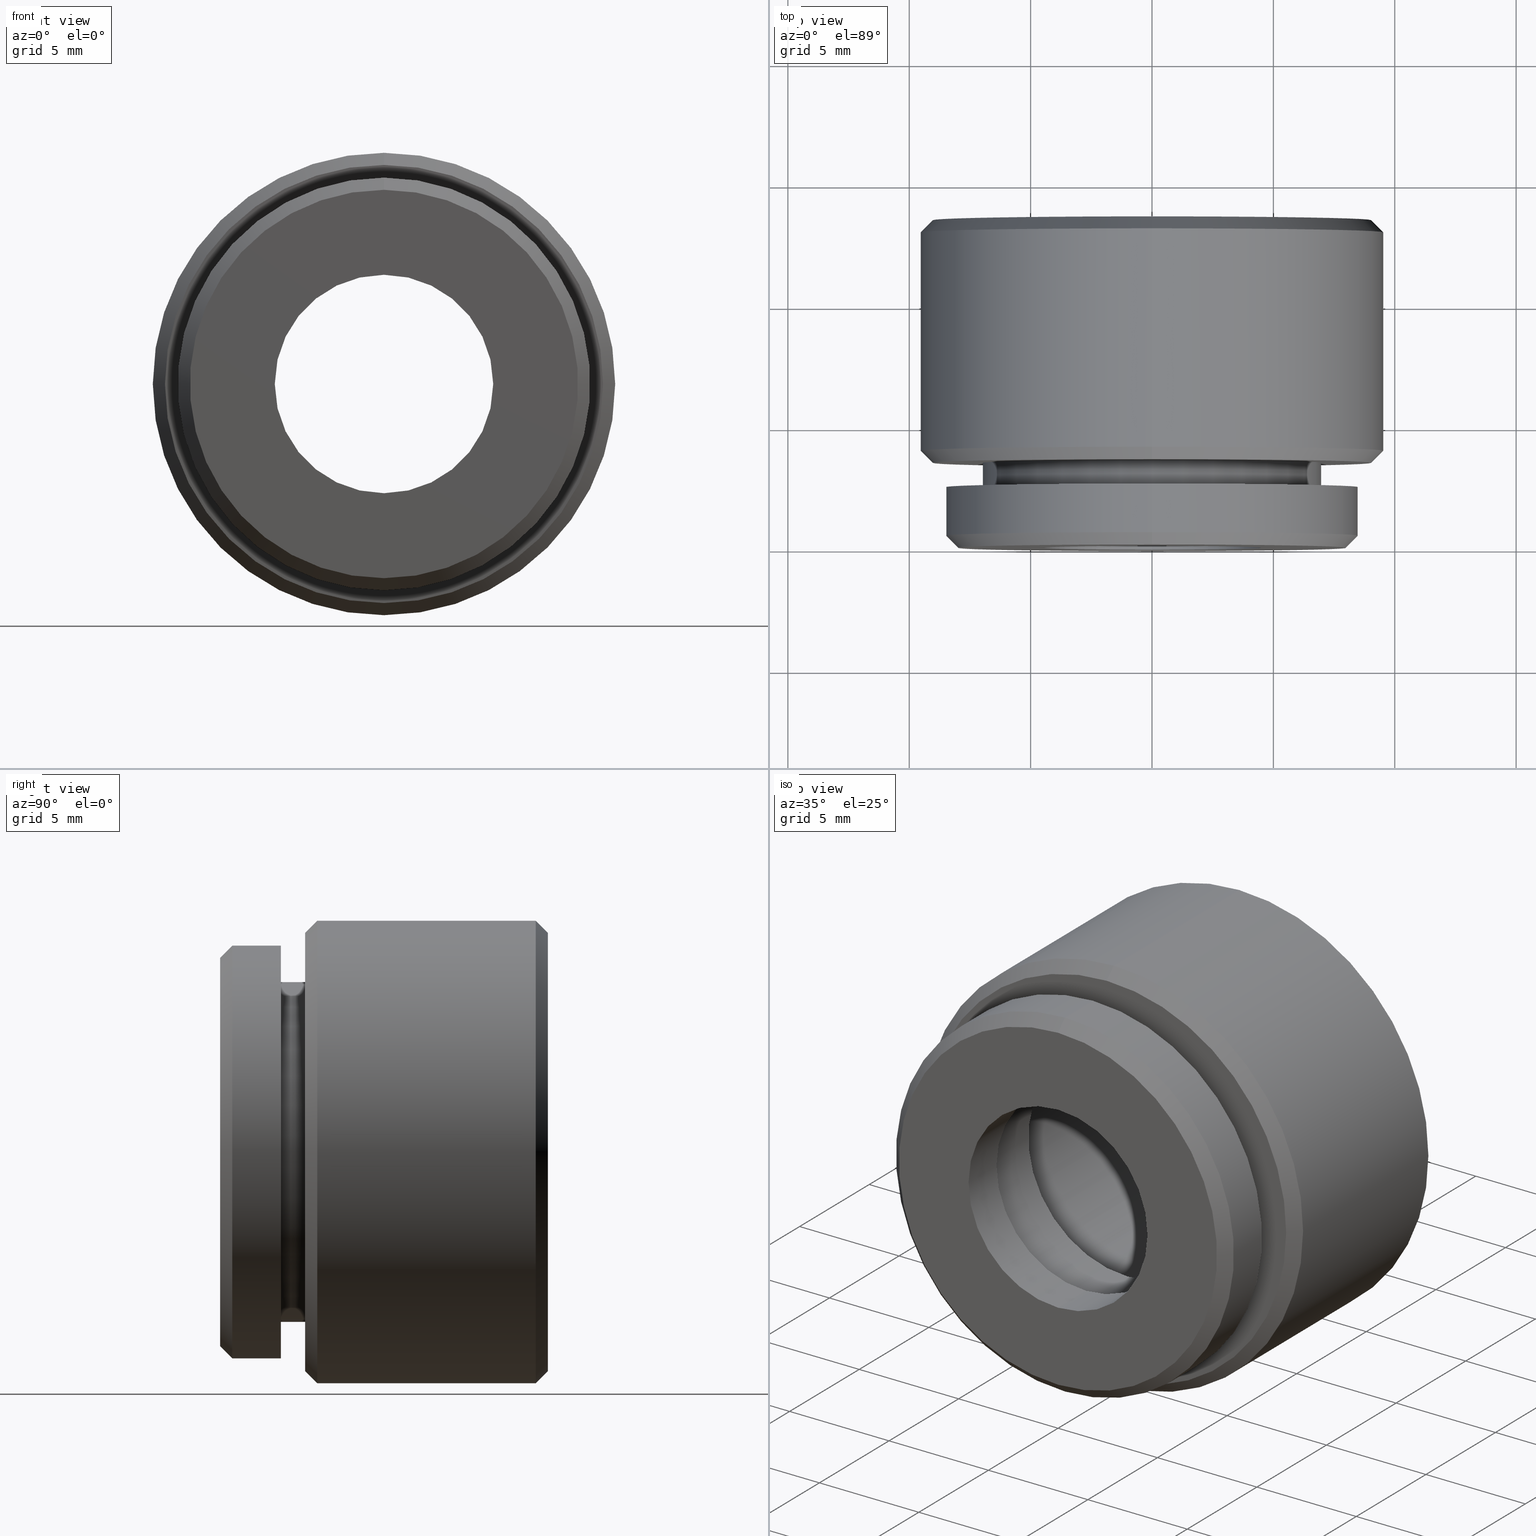
[diagram: canonical four-view strip — front | top / right | iso, engineering-drawing reading convention]
A machine part, canonical four-view strip (front | top / right | iso — engineering-drawing reading convention). The complete STEP part file that produces these views, byte-faithful:
ISO-10303-21;
HEADER;
FILE_DESCRIPTION (( 'STEP AP214' ),
    '1' );
FILE_NAME ('500032.STEP',
    '2019-09-04T02:33:52',
    ( 'user' ),
    ( '΢���й�' ),
    'SwSTEP 2.0',
    'SolidWorks 2016',
    '' );
FILE_SCHEMA (( 'AUTOMOTIVE_DESIGN' ));
ENDSEC;

DATA;
#1 = DIRECTION ( 'NONE',  ( 0.0000000000000000000, 0.0000000000000000000, -1.000000000000000000 ) ) ;
#2 = EDGE_LOOP ( 'NONE', ( #665, #142 ) ) ;
#3 = DIRECTION ( 'NONE',  ( 0.0000000000000000000, 0.0000000000000000000, -1.000000000000000000 ) ) ;
#4 = VERTEX_POINT ( 'NONE', #574 ) ;
#5 = CIRCLE ( 'NONE', #539, 8.500000000000000000 ) ;
#6 = CARTESIAN_POINT ( 'NONE',  ( 0.0000000000000000000, 0.0000000000000000000, 0.0000000000000000000 ) ) ;
#7 = CARTESIAN_POINT ( 'NONE',  ( 0.0000000000000000000, 0.0000000000000000000, 0.0000000000000000000 ) ) ;
#8 = CARTESIAN_POINT ( 'NONE',  ( 0.0000000000000000000, 3.500000000000000000, 0.0000000000000000000 ) ) ;
#9 = CARTESIAN_POINT ( 'NONE',  ( 0.0000000000000000000, 13.49999999999999800, 6.999999999999999100 ) ) ;
#10 = ORIENTED_EDGE ( 'NONE', *, *, #485, .F. ) ;
#11 = CARTESIAN_POINT ( 'NONE',  ( 1.166476076187854000E-015, 12.99999999999999600, 9.525000000000000400 ) ) ;
#12 = MECHANICAL_DESIGN_GEOMETRIC_PRESENTATION_REPRESENTATION (  '', ( #219 ), #159 ) ;
#13 = ADVANCED_FACE ( 'NONE', ( #479 ), #717, .T. ) ;
#14 = AXIS2_PLACEMENT_3D ( 'NONE', #145, #188, #191 ) ;
#15 = ORIENTED_EDGE ( 'NONE', *, *, #306, .F. ) ;
#16 = SURFACE_SIDE_STYLE ('',( #567 ) ) ;
#17 = CARTESIAN_POINT ( 'NONE',  ( 0.0000000000000000000, 3.500000000000000000, 0.0000000000000000000 ) ) ;
#18 = ADVANCED_FACE ( 'NONE', ( #744 ), #558, .F. ) ;
#19 = CARTESIAN_POINT ( 'NONE',  ( 5.510910596163088600E-016, 2.000000000000000000, 4.500000000000000000 ) ) ;
#20 = CYLINDRICAL_SURFACE ( 'NONE', #853, 6.500000000000000900 ) ;
#21 = CARTESIAN_POINT ( 'NONE',  ( 8.500000000000000000, 2.499999999999999600, 0.0000000000000000000 ) ) ;
#22 = CONICAL_SURFACE ( 'NONE', #821, 9.025000000000002100, 0.7853981633974452800 ) ;
#23 = PRESENTATION_STYLE_ASSIGNMENT (( #650 ) ) ;
#24 = CARTESIAN_POINT ( 'NONE',  ( 1.135859906209170200E-015, 3.500000000000000000, -9.025000000000002100 ) ) ;
#25 = FILL_AREA_STYLE ('',( #169 ) ) ;
#26 = DIRECTION ( 'NONE',  ( -0.0000000000000000000, -1.000000000000000000, -0.0000000000000000000 ) ) ;
#27 = CONICAL_SURFACE ( 'NONE', #280, 8.000000000000000000, 0.7853981633974466100 ) ;
#28 = ORIENTED_EDGE ( 'NONE', *, *, #111, .T. ) ;
#29 = DIRECTION ( 'NONE',  ( -0.0000000000000000000, -1.000000000000000000, -0.0000000000000000000 ) ) ;
#30 = AXIS2_PLACEMENT_3D ( 'NONE', #383, #241, #847 ) ;
#31 =( LENGTH_UNIT ( ) NAMED_UNIT ( * ) SI_UNIT ( .MILLI., .METRE. ) );
#32 = CARTESIAN_POINT ( 'NONE',  ( 9.797174393178825700E-016, 0.0000000000000000000, -8.000000000000000000 ) ) ;
#33 = CIRCLE ( 'NONE', #334, 4.500000000000000000 ) ;
#34 = ORIENTED_EDGE ( 'NONE', *, *, #237, .F. ) ;
#35 = DIRECTION ( 'NONE',  ( 0.0000000000000000000, 0.0000000000000000000, 1.000000000000000000 ) ) ;
#36 = AXIS2_PLACEMENT_3D ( 'NONE', #434, #314, #565 ) ;
#37 = DIRECTION ( 'NONE',  ( -0.0000000000000000000, -1.000000000000000000, -0.0000000000000000000 ) ) ;
#38 = VECTOR ( 'NONE', #423, 1000.000000000000000 ) ;
#39 = ORIENTED_EDGE ( 'NONE', *, *, #693, .F. ) ;
#40 = CARTESIAN_POINT ( 'NONE',  ( 0.0000000000000000000, 13.49999999999999800, 6.999999999999999100 ) ) ;
#41 = EDGE_LOOP ( 'NONE', ( #48, #271, #435, #116 ) ) ;
#42 = LINE ( 'NONE', #758, #874 ) ;
#43 = VECTOR ( 'NONE', #62, 1000.000000000000000 ) ;
#44 = CIRCLE ( 'NONE', #502, 7.600000000000000500 ) ;
#45 = CIRCLE ( 'NONE', #88, 6.500000000000000900 ) ;
#46 = LINE ( 'NONE', #668, #748 ) ;
#47 = PLANE ( 'NONE',  #394 ) ;
#48 = ORIENTED_EDGE ( 'NONE', *, *, #704, .F. ) ;
#49 = MECHANICAL_DESIGN_GEOMETRIC_PRESENTATION_REPRESENTATION (  '', ( #342 ), #104 ) ;
#50 = DIRECTION ( 'NONE',  ( -0.0000000000000000000, -1.000000000000000000, -0.0000000000000000000 ) ) ;
#51 = CARTESIAN_POINT ( 'NONE',  ( 6.123233995736767300E-016, 2.000000000000000400, 5.000000000000000900 ) ) ;
#52 = VECTOR ( 'NONE', #602, 1000.000000000000000 ) ;
#53 = PRESENTATION_STYLE_ASSIGNMENT (( #786 ) ) ;
#54 = CARTESIAN_POINT ( 'NONE',  ( 0.0000000000000000000, 0.0000000000000000000, -8.500000000000000000 ) ) ;
#55 = FACE_OUTER_BOUND ( 'NONE', #628, .T. ) ;
#56 = LINE ( 'NONE', #377, #451 ) ;
#57 = CIRCLE ( 'NONE', #77, 4.500000000000000000 ) ;
#58 = DIRECTION ( 'NONE',  ( 0.0000000000000000000, 1.000000000000000000, 0.0000000000000000000 ) ) ;
#59 = VECTOR ( 'NONE', #112, 1000.000000000000000 ) ;
#60 = PRESENTATION_LAYER_ASSIGNMENT (  '', '', ( #219 ) ) ;
#61 = ORIENTED_EDGE ( 'NONE', *, *, #544, .F. ) ;
#62 = DIRECTION ( 'NONE',  ( -0.0000000000000000000, -1.000000000000000000, -0.0000000000000000000 ) ) ;
#63 = ADVANCED_BREP_SHAPE_REPRESENTATION ( '500032', ( #787, #445 ), #852 ) ;
#64 = SURFACE_STYLE_FILL_AREA ( #610 ) ;
#65 = AXIS2_PLACEMENT_3D ( 'NONE', #234, #649, #585 ) ;
#66 = ORIENTED_EDGE ( 'NONE', *, *, #468, .F. ) ;
#67 = LINE ( 'NONE', #76, #52 ) ;
#68 = CONICAL_SURFACE ( 'NONE', #657, 6.999999999999999100, 0.7853981633974447300 ) ;
#69 = CIRCLE ( 'NONE', #672, 9.024999999999993200 ) ;
#70 = CIRCLE ( 'NONE', #328, 7.600000000000000500 ) ;
#71 = DIRECTION ( 'NONE',  ( -0.0000000000000000000, -1.000000000000000000, -0.0000000000000000000 ) ) ;
#72 = LINE ( 'NONE', #553, #477 ) ;
#73 = DIRECTION ( 'NONE',  ( 0.0000000000000000000, 0.0000000000000000000, -1.000000000000000000 ) ) ;
#74 = ORIENTED_EDGE ( 'NONE', *, *, #623, .F. ) ;
#75 = DIRECTION ( 'NONE',  ( -0.0000000000000000000, -1.000000000000000000, -0.0000000000000000000 ) ) ;
#76 = CARTESIAN_POINT ( 'NONE',  ( 7.960204194457796500E-016, 0.0000000000000000000, 6.500000000000000900 ) ) ;
#77 = AXIS2_PLACEMENT_3D ( 'NONE', #252, #29, #594 ) ;
#78 = ORIENTED_EDGE ( 'NONE', *, *, #555, .T. ) ;
#79 = DIRECTION ( 'NONE',  ( -0.0000000000000000000, -1.000000000000000000, -0.0000000000000000000 ) ) ;
#80 = DIRECTION ( 'NONE',  ( -0.0000000000000000000, -1.000000000000000000, -0.0000000000000000000 ) ) ;
#81 = EDGE_CURVE ( 'NONE', #293, #108, #849, .T. ) ;
#82 = VECTOR ( 'NONE', #841, 1000.000000000000000 ) ;
#83 = ORIENTED_EDGE ( 'NONE', *, *, #468, .T. ) ;
#84 = DIRECTION ( 'NONE',  ( 0.0000000000000000000, 1.000000000000000000, 0.0000000000000000000 ) ) ;
#85 = CARTESIAN_POINT ( 'NONE',  ( 0.0000000000000000000, 0.5000000000000022200, 0.0000000000000000000 ) ) ;
#86 = AXIS2_PLACEMENT_3D ( 'NONE', #750, #156, #633 ) ;
#87 = DIRECTION ( 'NONE',  ( 0.0000000000000000000, 0.0000000000000000000, 1.000000000000000000 ) ) ;
#88 = AXIS2_PLACEMENT_3D ( 'NONE', #642, #371, #702 ) ;
#89 = ORIENTED_EDGE ( 'NONE', *, *, #262, .F. ) ;
#90 = CARTESIAN_POINT ( 'NONE',  ( 0.0000000000000000000, 12.99999999999999600, 0.0000000000000000000 ) ) ;
#91 = ORIENTED_EDGE ( 'NONE', *, *, #481, .F. ) ;
#92 = DIRECTION ( 'NONE',  ( 0.0000000000000000000, 0.0000000000000000000, -1.000000000000000000 ) ) ;
#93 =( NAMED_UNIT ( * ) PLANE_ANGLE_UNIT ( ) SI_UNIT ( $, .RADIAN. ) );
#94 = EDGE_LOOP ( 'NONE', ( #279, #660, #168, #674 ) ) ;
#95 = FACE_BOUND ( 'NONE', #157, .T. ) ;
#96 = PRESENTATION_STYLE_ASSIGNMENT (( #155 ) ) ;
#97 = DIRECTION ( 'NONE',  ( -0.0000000000000000000, -1.000000000000000000, -0.0000000000000000000 ) ) ;
#98 = APPLICATION_CONTEXT ( 'automotive_design' ) ;
#99 = COLOUR_RGB ( '',1.000000000000000000, 1.000000000000000000, 1.000000000000000000 ) ;
#100 = VERTEX_POINT ( 'NONE', #456 ) ;
#101 = FILL_AREA_STYLE_COLOUR ( '', #203 ) ;
#102 = ORIENTED_EDGE ( 'NONE', *, *, #132, .T. ) ;
#103 = DIRECTION ( 'NONE',  ( 0.0000000000000000000, 0.0000000000000000000, 1.000000000000000000 ) ) ;
#104 =( GEOMETRIC_REPRESENTATION_CONTEXT ( 3 ) GLOBAL_UNCERTAINTY_ASSIGNED_CONTEXT ( ( #499 ) ) GLOBAL_UNIT_ASSIGNED_CONTEXT ( ( #31, #780, #721 ) ) REPRESENTATION_CONTEXT ( 'NONE', 'WORKASPACE' ) );
#105 = VERTEX_POINT ( 'NONE', #712 ) ;
#106 = DIRECTION ( 'NONE',  ( 0.0000000000000000000, 1.000000000000000000, 0.0000000000000000000 ) ) ;
#107 = APPLICATION_PROTOCOL_DEFINITION ( 'draft international standard', 'automotive_design', 1998, #98 ) ;
#108 = VERTEX_POINT ( 'NONE', #315 ) ;
#109 = VERTEX_POINT ( 'NONE', #24 ) ;
#110 = DIRECTION ( 'NONE',  ( 0.0000000000000000000, 0.0000000000000000000, -1.000000000000000000 ) ) ;
#111 = EDGE_CURVE ( 'NONE', #551, #805, #666, .T. ) ;
#112 = DIRECTION ( 'NONE',  ( 0.0000000000000000000, 0.7071067811865500200, 0.7071067811865450200 ) ) ;
#113 = ORIENTED_EDGE ( 'NONE', *, *, #332, .T. ) ;
#114 = DIRECTION ( 'NONE',  ( 0.0000000000000000000, 0.0000000000000000000, -1.000000000000000000 ) ) ;
#115 = CARTESIAN_POINT ( 'NONE',  ( 0.0000000000000000000, 3.500000000000000000, 0.0000000000000000000 ) ) ;
#116 = ORIENTED_EDGE ( 'NONE', *, *, #390, .T. ) ;
#117 = AXIS2_PLACEMENT_3D ( 'NONE', #579, #753, #3 ) ;
#118 = ORIENTED_EDGE ( 'NONE', *, *, #182, .T. ) ;
#119 = CARTESIAN_POINT ( 'NONE',  ( 0.0000000000000000000, 12.99999999999999600, -6.500000000000000900 ) ) ;
#120 = CYLINDRICAL_SURFACE ( 'NONE', #620, 4.500000000000000000 ) ;
#121 = EDGE_LOOP ( 'NONE', ( #242, #351, #233, #348 ) ) ;
#122 = EDGE_LOOP ( 'NONE', ( #521, #83 ) ) ;
#123 = DIRECTION ( 'NONE',  ( 0.0000000000000000000, 0.0000000000000000000, -1.000000000000000000 ) ) ;
#124 = SURFACE_SIDE_STYLE ('',( #64 ) ) ;
#125 = VERTEX_POINT ( 'NONE', #646 ) ;
#126 =( LENGTH_UNIT ( ) NAMED_UNIT ( * ) SI_UNIT ( .MILLI., .METRE. ) );
#127 = FACE_OUTER_BOUND ( 'NONE', #773, .T. ) ;
#128 = AXIS2_PLACEMENT_3D ( 'NONE', #793, #681, #734 ) ;
#129 = CIRCLE ( 'NONE', #36, 7.000000000000000900 ) ;
#130 = ORIENTED_EDGE ( 'NONE', *, *, #436, .F. ) ;
#131 = PLANE ( 'NONE',  #575 ) ;
#132 = EDGE_CURVE ( 'NONE', #4, #678, #643, .T. ) ;
#133 = LINE ( 'NONE', #340, #38 ) ;
#134 = ORIENTED_EDGE ( 'NONE', *, *, #402, .F. ) ;
#135 = VECTOR ( 'NONE', #520, 1000.000000000000000 ) ;
#136 = CARTESIAN_POINT ( 'NONE',  ( 0.0000000000000000000, 2.499999999999999600, -8.500000000000000000 ) ) ;
#137 = ORIENTED_EDGE ( 'NONE', *, *, #289, .T. ) ;
#138 = CONICAL_SURFACE ( 'NONE', #463, 9.525000000000000400, 0.7853981633974533900 ) ;
#139 = ORIENTED_EDGE ( 'NONE', *, *, #198, .T. ) ;
#140 = EDGE_LOOP ( 'NONE', ( #731, #264, #711, #224 ) ) ;
#141 = DIRECTION ( 'NONE',  ( 0.0000000000000000000, 1.000000000000000000, 0.0000000000000000000 ) ) ;
#142 = ORIENTED_EDGE ( 'NONE', *, *, #289, .F. ) ;
#143 = EDGE_LOOP ( 'NONE', ( #225, #685 ) ) ;
#144 = DIRECTION ( 'NONE',  ( 0.0000000000000000000, 0.0000000000000000000, -1.000000000000000000 ) ) ;
#145 = CARTESIAN_POINT ( 'NONE',  ( 0.0000000000000000000, 2.000000000000000000, 0.0000000000000000000 ) ) ;
#146 = LINE ( 'NONE', #430, #295 ) ;
#147 = AXIS2_PLACEMENT_3D ( 'NONE', #667, #730, #278 ) ;
#148 = ORIENTED_EDGE ( 'NONE', *, *, #489, .T. ) ;
#149 = DIRECTION ( 'NONE',  ( 0.0000000000000000000, 1.000000000000000000, 0.0000000000000000000 ) ) ;
#150 = ORIENTED_EDGE ( 'NONE', *, *, #318, .T. ) ;
#151 = EDGE_CURVE ( 'NONE', #327, #223, #626, .T. ) ;
#152 = CARTESIAN_POINT ( 'NONE',  ( 1.105243736230486600E-015, 3.500000000000000000, -9.025000000000002100 ) ) ;
#153 = DIRECTION ( 'NONE',  ( -0.0000000000000000000, -1.000000000000000000, -0.0000000000000000000 ) ) ;
#154 = ORIENTED_EDGE ( 'NONE', *, *, #81, .T. ) ;
#155 = SURFACE_STYLE_USAGE ( .BOTH. , #247 ) ;
#156 = DIRECTION ( 'NONE',  ( 0.0000000000000000000, 1.000000000000000000, 0.0000000000000000000 ) ) ;
#157 = EDGE_LOOP ( 'NONE', ( #818, #831 ) ) ;
#158 = DIRECTION ( 'NONE',  ( -0.0000000000000000000, -1.000000000000000000, -0.0000000000000000000 ) ) ;
#159 =( GEOMETRIC_REPRESENTATION_CONTEXT ( 3 ) GLOBAL_UNCERTAINTY_ASSIGNED_CONTEXT ( ( #595 ) ) GLOBAL_UNIT_ASSIGNED_CONTEXT ( ( #589, #836, #458 ) ) REPRESENTATION_CONTEXT ( 'NONE', 'WORKASPACE' ) );
#160 = COLOUR_RGB ( '',1.000000000000000000, 1.000000000000000000, 1.000000000000000000 ) ;
#161 = AXIS2_PLACEMENT_3D ( 'NONE', #304, #718, #834 ) ;
#162 = LINE ( 'NONE', #40, #59 ) ;
#163 = UNCERTAINTY_MEASURE_WITH_UNIT (LENGTH_MEASURE( 1.000000000000000100E-005 ), #126, 'distance_accuracy_value', 'NONE');
#164 = DIRECTION ( 'NONE',  ( 0.0000000000000000000, 0.0000000000000000000, -1.000000000000000000 ) ) ;
#165 = PRODUCT_DEFINITION_CONTEXT ( 'detailed design', #98, 'design' ) ;
#166 = DIRECTION ( 'NONE',  ( 0.0000000000000000000, -0.0000000000000000000, 1.000000000000000000 ) ) ;
#167 = EDGE_LOOP ( 'NONE', ( #743, #300, #154, #561 ) ) ;
#168 = ORIENTED_EDGE ( 'NONE', *, *, #733, .T. ) ;
#169 = FILL_AREA_STYLE_COLOUR ( '', #566 ) ;
#170 = EDGE_LOOP ( 'NONE', ( #130, #856, #209, #865 ) ) ;
#171 = CARTESIAN_POINT ( 'NONE',  ( 9.307315673519885500E-016, 0.0000000000000000000, 7.600000000000000500 ) ) ;
#172 = CIRCLE ( 'NONE', #128, 5.000000000000000900 ) ;
#173 = CARTESIAN_POINT ( 'NONE',  ( 0.0000000000000000000, 13.49999999999999800, -9.024999999999993200 ) ) ;
#174 =( NAMED_UNIT ( * ) SI_UNIT ( $, .STERADIAN. ) SOLID_ANGLE_UNIT ( ) );
#175 = ADVANCED_FACE ( 'NONE', ( #516, #784 ), #526, .T. ) ;
#176 = DIRECTION ( 'NONE',  ( -0.0000000000000000000, -1.000000000000000000, -0.0000000000000000000 ) ) ;
#177 = PRODUCT_CONTEXT ( 'NONE', #392, 'mechanical' ) ;
#178 = ADVANCED_FACE ( 'NONE', ( #694 ), #472, .F. ) ;
#179 = AXIS2_PLACEMENT_3D ( 'NONE', #341, #546, #640 ) ;
#180 = SURFACE_STYLE_USAGE ( .BOTH. , #215 ) ;
#181 = ORIENTED_EDGE ( 'NONE', *, *, #262, .T. ) ;
#182 = EDGE_CURVE ( 'NONE', #125, #236, #426, .T. ) ;
#183 = ADVANCED_FACE ( 'NONE', ( #493 ), #609, .T. ) ;
#184 = ORIENTED_EDGE ( 'NONE', *, *, #208, .T. ) ;
#185 = CARTESIAN_POINT ( 'NONE',  ( 9.307315673519885500E-016, 5.000000000000000900, 7.600000000000000500 ) ) ;
#186 = CARTESIAN_POINT ( 'NONE',  ( 0.0000000000000000000, 0.0000000000000000000, -9.525000000000000400 ) ) ;
#187 = DIRECTION ( 'NONE',  ( 0.0000000000000000000, -1.000000000000000000, -0.0000000000000000000 ) ) ;
#188 = DIRECTION ( 'NONE',  ( -0.0000000000000000000, -1.000000000000000000, -0.0000000000000000000 ) ) ;
#189 = DIRECTION ( 'NONE',  ( 0.0000000000000000000, 0.0000000000000000000, -1.000000000000000000 ) ) ;
#190 = ORIENTED_EDGE ( 'NONE', *, *, #257, .T. ) ;
#191 = DIRECTION ( 'NONE',  ( 0.0000000000000000000, 0.0000000000000000000, -1.000000000000000000 ) ) ;
#192 = CYLINDRICAL_SURFACE ( 'NONE', #548, 7.000000000000000900 ) ;
#193 = PRESENTATION_LAYER_ASSIGNMENT (  '', '', ( #740 ) ) ;
#194 = DIRECTION ( 'NONE',  ( -0.0000000000000000000, -1.000000000000000000, -0.0000000000000000000 ) ) ;
#195 = DIRECTION ( 'NONE',  ( -0.0000000000000000000, -1.000000000000000000, -0.0000000000000000000 ) ) ;
#196 = FACE_OUTER_BOUND ( 'NONE', #122, .T. ) ;
#197 = CARTESIAN_POINT ( 'NONE',  ( 0.0000000000000000000, 0.0000000000000000000, 0.0000000000000000000 ) ) ;
#198 = EDGE_CURVE ( 'NONE', #835, #108, #5, .T. ) ;
#199 = PRODUCT ( '500032', '500032', '', ( #177 ) ) ;
#200 = DIRECTION ( 'NONE',  ( 0.0000000000000000000, 0.0000000000000000000, 1.000000000000000000 ) ) ;
#201 = CYLINDRICAL_SURFACE ( 'NONE', #782, 7.600000000000000500 ) ;
#202 = EDGE_CURVE ( 'NONE', #299, #236, #251, .T. ) ;
#203 = COLOUR_RGB ( '',1.000000000000000000, 1.000000000000000000, 1.000000000000000000 ) ;
#204 = CARTESIAN_POINT ( 'NONE',  ( 0.0000000000000000000, 13.49999999999999800, 0.0000000000000000000 ) ) ;
#205 = LINE ( 'NONE', #476, #336 ) ;
#206 = PLANE ( 'NONE',  #409 ) ;
#207 = AXIS2_PLACEMENT_3D ( 'NONE', #661, #282, #604 ) ;
#208 = EDGE_CURVE ( 'NONE', #678, #217, #42, .T. ) ;
#209 = ORIENTED_EDGE ( 'NONE', *, *, #601, .T. ) ;
#210 = DIRECTION ( 'NONE',  ( 0.0000000000000000000, 0.0000000000000000000, -1.000000000000000000 ) ) ;
#211 = CARTESIAN_POINT ( 'NONE',  ( 8.572527594031473200E-016, 3.500000000000000000, 7.000000000000000000 ) ) ;
#212 = AXIS2_PLACEMENT_3D ( 'NONE', #345, #494, #210 ) ;
#213 = EDGE_CURVE ( 'NONE', #297, #825, #416, .T. ) ;
#214 = DIRECTION ( 'NONE',  ( 0.0000000000000000000, 0.0000000000000000000, -1.000000000000000000 ) ) ;
#215 = SURFACE_SIDE_STYLE ('',( #703 ) ) ;
#216 = LINE ( 'NONE', #772, #421 ) ;
#217 = VERTEX_POINT ( 'NONE', #245 ) ;
#218 = CIRCLE ( 'NONE', #484, 5.000000000000000900 ) ;
#219 = STYLED_ITEM ( 'NONE', ( #23 ), #63 ) ;
#220 = FILL_AREA_STYLE ('',( #653 ) ) ;
#221 = MECHANICAL_DESIGN_GEOMETRIC_PRESENTATION_REPRESENTATION (  '', ( #412 ), #550 ) ;
#222 = FACE_OUTER_BOUND ( 'NONE', #531, .T. ) ;
#223 = VERTEX_POINT ( 'NONE', #173 ) ;
#224 = ORIENTED_EDGE ( 'NONE', *, *, #459, .T. ) ;
#225 = ORIENTED_EDGE ( 'NONE', *, *, #576, .T. ) ;
#226 = FACE_OUTER_BOUND ( 'NONE', #872, .T. ) ;
#227 = ORIENTED_EDGE ( 'NONE', *, *, #359, .T. ) ;
#228 = SURFACE_STYLE_FILL_AREA ( #822 ) ;
#229 = SURFACE_STYLE_USAGE ( .BOTH. , #232 ) ;
#230 = FACE_OUTER_BOUND ( 'NONE', #167, .T. ) ;
#231 = CIRCLE ( 'NONE', #538, 5.000000000000000900 ) ;
#232 = SURFACE_SIDE_STYLE ('',( #713 ) ) ;
#233 = ORIENTED_EDGE ( 'NONE', *, *, #370, .T. ) ;
#234 = CARTESIAN_POINT ( 'NONE',  ( 0.0000000000000000000, 2.499999999999999600, 0.0000000000000000000 ) ) ;
#235 = AXIS2_PLACEMENT_3D ( 'NONE', #441, #701, #103 ) ;
#236 = VERTEX_POINT ( 'NONE', #804 ) ;
#237 = EDGE_CURVE ( 'NONE', #321, #645, #767, .T. ) ;
#238 = FACE_OUTER_BOUND ( 'NONE', #367, .T. ) ;
#239 = EDGE_LOOP ( 'NONE', ( #716, #250, #742, #708 ) ) ;
#240 = DIRECTION ( 'NONE',  ( -0.0000000000000000000, -1.000000000000000000, -0.0000000000000000000 ) ) ;
#241 = DIRECTION ( 'NONE',  ( 0.0000000000000000000, 1.000000000000000000, 0.0000000000000000000 ) ) ;
#242 = ORIENTED_EDGE ( 'NONE', *, *, #202, .F. ) ;
#243 = DIRECTION ( 'NONE',  ( 0.0000000000000000000, 0.0000000000000000000, -1.000000000000000000 ) ) ;
#244 = DIRECTION ( 'NONE',  ( 0.0000000000000000000, 0.0000000000000000000, -1.000000000000000000 ) ) ;
#245 = CARTESIAN_POINT ( 'NONE',  ( 0.0000000000000000000, 2.000000000000000400, -5.000000000000000900 ) ) ;
#246 = MECHANICAL_DESIGN_GEOMETRIC_PRESENTATION_REPRESENTATION (  '', ( #740 ), #867 ) ;
#247 = SURFACE_SIDE_STYLE ('',( #228 ) ) ;
#248 = UNCERTAINTY_MEASURE_WITH_UNIT (LENGTH_MEASURE( 1.000000000000000100E-005 ), #258, 'distance_accuracy_value', 'NONE');
#249 = DIRECTION ( 'NONE',  ( 0.0000000000000000000, 0.0000000000000000000, 1.000000000000000000 ) ) ;
#250 = ORIENTED_EDGE ( 'NONE', *, *, #436, .T. ) ;
#251 = LINE ( 'NONE', #400, #135 ) ;
#252 = CARTESIAN_POINT ( 'NONE',  ( 0.0000000000000000000, 0.0000000000000000000, 0.0000000000000000000 ) ) ;
#253 = DIRECTION ( 'NONE',  ( 0.0000000000000000000, 0.0000000000000000000, -1.000000000000000000 ) ) ;
#254 =( NAMED_UNIT ( * ) SI_UNIT ( $, .STERADIAN. ) SOLID_ANGLE_UNIT ( ) );
#255 = DIRECTION ( 'NONE',  ( 0.0000000000000000000, 1.000000000000000000, 0.0000000000000000000 ) ) ;
#256 = CIRCLE ( 'NONE', #117, 8.000000000000000000 ) ;
#257 = EDGE_CURVE ( 'NONE', #803, #293, #256, .T. ) ;
#258 =( LENGTH_UNIT ( ) NAMED_UNIT ( * ) SI_UNIT ( .MILLI., .METRE. ) );
#259 = CARTESIAN_POINT ( 'NONE',  ( 0.0000000000000000000, 2.500000000000000000, 0.0000000000000000000 ) ) ;
#260 = ORIENTED_EDGE ( 'NONE', *, *, #697, .T. ) ;
#261 = AXIS2_PLACEMENT_3D ( 'NONE', #724, #725, #35 ) ;
#262 = EDGE_CURVE ( 'NONE', #236, #651, #729, .T. ) ;
#263 =( NAMED_UNIT ( * ) PLANE_ANGLE_UNIT ( ) SI_UNIT ( $, .RADIAN. ) );
#264 = ORIENTED_EDGE ( 'NONE', *, *, #616, .T. ) ;
#265 = VERTEX_POINT ( 'NONE', #687 ) ;
#266 = ADVANCED_FACE ( 'NONE', ( #230 ), #27, .T. ) ;
#267 = DIRECTION ( 'NONE',  ( 0.0000000000000000000, 0.7071067811865487900, 0.7071067811865463500 ) ) ;
#268 = EDGE_CURVE ( 'NONE', #798, #105, #70, .T. ) ;
#269 = VECTOR ( 'NONE', #433, 1000.000000000000000 ) ;
#270 = VECTOR ( 'NONE', #513, 1000.000000000000000 ) ;
#271 = ORIENTED_EDGE ( 'NONE', *, *, #560, .F. ) ;
#272 = DIRECTION ( 'NONE',  ( -0.0000000000000000000, -1.000000000000000000, -0.0000000000000000000 ) ) ;
#273 = DIRECTION ( 'NONE',  ( 0.0000000000000000000, 0.0000000000000000000, 1.000000000000000000 ) ) ;
#274 = PRESENTATION_STYLE_ASSIGNMENT (( #229 ) ) ;
#275 = DIRECTION ( 'NONE',  ( -0.0000000000000000000, -1.000000000000000000, -0.0000000000000000000 ) ) ;
#276 = ORIENTED_EDGE ( 'NONE', *, *, #208, .F. ) ;
#277 = AXIS2_PLACEMENT_3D ( 'NONE', #259, #497, #450 ) ;
#278 = DIRECTION ( 'NONE',  ( 0.0000000000000000000, 0.0000000000000000000, 1.000000000000000000 ) ) ;
#279 = ORIENTED_EDGE ( 'NONE', *, *, #697, .F. ) ;
#280 = AXIS2_PLACEMENT_3D ( 'NONE', #662, #636, #366 ) ;
#281 = ORIENTED_EDGE ( 'NONE', *, *, #318, .F. ) ;
#282 = DIRECTION ( 'NONE',  ( -0.0000000000000000000, -1.000000000000000000, -0.0000000000000000000 ) ) ;
#283 = ORIENTED_EDGE ( 'NONE', *, *, #510, .T. ) ;
#284 = CIRCLE ( 'NONE', #738, 8.500000000000000000 ) ;
#285 = DIRECTION ( 'NONE',  ( -0.0000000000000000000, -1.000000000000000000, -0.0000000000000000000 ) ) ;
#286 = FACE_OUTER_BOUND ( 'NONE', #140, .T. ) ;
#287 = CIRCLE ( 'NONE', #147, 9.525000000000000400 ) ;
#288 = EDGE_LOOP ( 'NONE', ( #329, #344, #848, #635 ) ) ;
#289 = EDGE_CURVE ( 'NONE', #504, #800, #391, .T. ) ;
#290 = DIRECTION ( 'NONE',  ( -0.0000000000000000000, 1.000000000000000000, -0.0000000000000000000 ) ) ;
#291 = ORIENTED_EDGE ( 'NONE', *, *, #691, .F. ) ;
#292 = STYLED_ITEM ( 'NONE', ( #364 ), #424 ) ;
#293 = VERTEX_POINT ( 'NONE', #381 ) ;
#294 = CARTESIAN_POINT ( 'NONE',  ( 5.000000000000000900, 2.000000000000000000, 0.0000000000000000000 ) ) ;
#295 = VECTOR ( 'NONE', #71, 1000.000000000000000 ) ;
#296 = AXIS2_PLACEMENT_3D ( 'NONE', #442, #106, #273 ) ;
#297 = VERTEX_POINT ( 'NONE', #9 ) ;
#298 = AXIS2_PLACEMENT_3D ( 'NONE', #324, #517, #144 ) ;
#299 = VERTEX_POINT ( 'NONE', #569 ) ;
#300 = ORIENTED_EDGE ( 'NONE', *, *, #352, .F. ) ;
#301 = CIRCLE ( 'NONE', #789, 8.500000000000000000 ) ;
#302 = CIRCLE ( 'NONE', #207, 7.600000000000000500 ) ;
#303 = VERTEX_POINT ( 'NONE', #830 ) ;
#304 = CARTESIAN_POINT ( 'NONE',  ( 0.0000000000000000000, 4.000000000000001800, 0.0000000000000000000 ) ) ;
#305 = EDGE_LOOP ( 'NONE', ( #281, #74 ) ) ;
#306 = EDGE_CURVE ( 'NONE', #100, #819, #46, .T. ) ;
#307 = ADVANCED_FACE ( 'NONE', ( #286 ), #20, .F. ) ;
#308 = FACE_BOUND ( 'NONE', #338, .T. ) ;
#309 = ORIENTED_EDGE ( 'NONE', *, *, #420, .T. ) ;
#310 = FILL_AREA_STYLE ('',( #369 ) ) ;
#311 = AXIS2_PLACEMENT_3D ( 'NONE', #809, #158, #846 ) ;
#312 = EDGE_CURVE ( 'NONE', #727, #265, #44, .T. ) ;
#313 = ORIENTED_EDGE ( 'NONE', *, *, #182, .F. ) ;
#314 = DIRECTION ( 'NONE',  ( -0.0000000000000000000, -1.000000000000000000, -0.0000000000000000000 ) ) ;
#315 = CARTESIAN_POINT ( 'NONE',  ( 1.040949779275250100E-015, 0.5000000000000022200, 8.500000000000000000 ) ) ;
#316 = AXIS2_PLACEMENT_3D ( 'NONE', #683, #686, #361 ) ;
#317 = EDGE_CURVE ( 'NONE', #715, #551, #67, .T. ) ;
#318 = EDGE_CURVE ( 'NONE', #100, #515, #437, .T. ) ;
#319 = ADVANCED_FACE ( 'NONE', ( #226 ), #600, .F. ) ;
#320 = DIRECTION ( 'NONE',  ( 0.0000000000000000000, 0.0000000000000000000, -1.000000000000000000 ) ) ;
#321 = VERTEX_POINT ( 'NONE', #19 ) ;
#322 = EDGE_LOOP ( 'NONE', ( #564, #673, #61, #857 ) ) ;
#323 = AXIS2_PLACEMENT_3D ( 'NONE', #801, #598, #679 ) ;
#324 = CARTESIAN_POINT ( 'NONE',  ( 0.0000000000000000000, 0.0000000000000000000, 0.0000000000000000000 ) ) ;
#325 = PRODUCT_RELATED_PRODUCT_CATEGORY ( 'part', '', ( #199 ) ) ;
#326 = DIRECTION ( 'NONE',  ( 0.0000000000000000000, 0.0000000000000000000, 1.000000000000000000 ) ) ;
#327 = VERTEX_POINT ( 'NONE', #828 ) ;
#328 = AXIS2_PLACEMENT_3D ( 'NONE', #535, #764, #110 ) ;
#329 = ORIENTED_EDGE ( 'NONE', *, *, #739, .F. ) ;
#330 = ORIENTED_EDGE ( 'NONE', *, *, #658, .F. ) ;
#331 = CIRCLE ( 'NONE', #498, 9.025000000000002100 ) ;
#332 = EDGE_CURVE ( 'NONE', #303, #379, #57, .T. ) ;
#333 = FACE_OUTER_BOUND ( 'NONE', #845, .T. ) ;
#334 = AXIS2_PLACEMENT_3D ( 'NONE', #501, #768, #732 ) ;
#335 = DIRECTION ( 'NONE',  ( 0.0000000000000000000, 1.000000000000000000, 0.0000000000000000000 ) ) ;
#336 = VECTOR ( 'NONE', #353, 1000.000000000000000 ) ;
#337 = PLANE ( 'NONE',  #781 ) ;
#338 = EDGE_LOOP ( 'NONE', ( #582, #460 ) ) ;
#339 = AXIS2_PLACEMENT_3D ( 'NONE', #817, #518, #571 ) ;
#340 = CARTESIAN_POINT ( 'NONE',  ( 1.040949779275250100E-015, 0.0000000000000000000, 8.500000000000000000 ) ) ;
#341 = CARTESIAN_POINT ( 'NONE',  ( 0.0000000000000000000, 0.0000000000000000000, 0.0000000000000000000 ) ) ;
#342 = STYLED_ITEM ( 'NONE', ( #274 ), #627 ) ;
#343 = DIRECTION ( 'NONE',  ( 0.0000000000000000000, 0.0000000000000000000, -1.000000000000000000 ) ) ;
#344 = ORIENTED_EDGE ( 'NONE', *, *, #623, .T. ) ;
#345 = CARTESIAN_POINT ( 'NONE',  ( 0.0000000000000000000, 0.0000000000000000000, 0.0000000000000000000 ) ) ;
#346 = UNCERTAINTY_MEASURE_WITH_UNIT (LENGTH_MEASURE( 1.000000000000000100E-005 ), #762, 'distance_accuracy_value', 'NONE');
#347 = CARTESIAN_POINT ( 'NONE',  ( 7.960204194457796500E-016, 12.99999999999999600, 6.500000000000000900 ) ) ;
#348 = ORIENTED_EDGE ( 'NONE', *, *, #395, .T. ) ;
#349 = EDGE_LOOP ( 'NONE', ( #534, #680, #447, #330 ) ) ;
#350 = CYLINDRICAL_SURFACE ( 'NONE', #323, 6.500000000000000900 ) ;
#351 = ORIENTED_EDGE ( 'NONE', *, *, #658, .T. ) ;
#352 = EDGE_CURVE ( 'NONE', #293, #803, #577, .T. ) ;
#353 = DIRECTION ( 'NONE',  ( 8.659560562354902000E-017, 0.7071067811865500200, -0.7071067811865450200 ) ) ;
#354 =( NAMED_UNIT ( * ) PLANE_ANGLE_UNIT ( ) SI_UNIT ( $, .RADIAN. ) );
#355 = AXIS2_PLACEMENT_3D ( 'NONE', #547, #482, #607 ) ;
#356 = EDGE_CURVE ( 'NONE', #825, #297, #404, .T. ) ;
#357 = DIRECTION ( 'NONE',  ( 0.0000000000000000000, 0.0000000000000000000, -1.000000000000000000 ) ) ;
#358 = AXIS2_PLACEMENT_3D ( 'NONE', #783, #285, #406 ) ;
#359 = EDGE_CURVE ( 'NONE', #803, #835, #465, .T. ) ;
#360 = CARTESIAN_POINT ( 'NONE',  ( 8.572527594031472200E-016, 13.49999999999999800, -6.999999999999999100 ) ) ;
#361 = DIRECTION ( 'NONE',  ( 0.0000000000000000000, 0.0000000000000000000, -1.000000000000000000 ) ) ;
#362 = VECTOR ( 'NONE', #194, 1000.000000000000000 ) ;
#363 = AXIS2_PLACEMENT_3D ( 'NONE', #587, #537, #357 ) ;
#364 = PRESENTATION_STYLE_ASSIGNMENT (( #180 ) ) ;
#365 = ORIENTED_EDGE ( 'NONE', *, *, #485, .T. ) ;
#366 = DIRECTION ( 'NONE',  ( 0.0000000000000000000, 0.0000000000000000000, 1.000000000000000000 ) ) ;
#367 = EDGE_LOOP ( 'NONE', ( #723, #788, #28, #815 ) ) ;
#368 = CIRCLE ( 'NONE', #373, 9.525000000000000400 ) ;
#369 = FILL_AREA_STYLE_COLOUR ( '', #631 ) ;
#370 = EDGE_CURVE ( 'NONE', #677, #651, #737, .T. ) ;
#371 = DIRECTION ( 'NONE',  ( -0.0000000000000000000, 1.000000000000000000, -0.0000000000000000000 ) ) ;
#372 = CARTESIAN_POINT ( 'NONE',  ( 0.0000000000000000000, 6.000000000000000000, 0.0000000000000000000 ) ) ;
#373 = AXIS2_PLACEMENT_3D ( 'NONE', #838, #58, #529 ) ;
#374 = DIRECTION ( 'NONE',  ( 0.0000000000000000000, 0.0000000000000000000, 1.000000000000000000 ) ) ;
#375 = EDGE_LOOP ( 'NONE', ( #706, #557 ) ) ;
#376 = EDGE_CURVE ( 'NONE', #645, #379, #216, .T. ) ;
#377 = CARTESIAN_POINT ( 'NONE',  ( 0.0000000000000000000, 0.0000000000000000000, -6.500000000000000900 ) ) ;
#378 = CARTESIAN_POINT ( 'NONE',  ( 0.0000000000000000000, 12.99999999999999600, 0.0000000000000000000 ) ) ;
#379 = VERTEX_POINT ( 'NONE', #676 ) ;
#380 =( NAMED_UNIT ( * ) PLANE_ANGLE_UNIT ( ) SI_UNIT ( $, .RADIAN. ) );
#381 = CARTESIAN_POINT ( 'NONE',  ( 0.0000000000000000000, 0.0000000000000000000, 8.000000000000000000 ) ) ;
#382 = AXIS2_PLACEMENT_3D ( 'NONE', #505, #240, #639 ) ;
#383 = CARTESIAN_POINT ( 'NONE',  ( 7.600000000000000500, 5.000000000000000900, 0.0000000000000000000 ) ) ;
#384 = DIRECTION ( 'NONE',  ( 1.000000000000000000, 0.0000000000000000000, 0.0000000000000000000 ) ) ;
#385 = CIRCLE ( 'NONE', #363, 6.500000000000000900 ) ;
#386 = EDGE_LOOP ( 'NONE', ( #388, #190 ) ) ;
#387 = CARTESIAN_POINT ( 'NONE',  ( 0.0000000000000000000, 0.0000000000000000000, 0.0000000000000000000 ) ) ;
#388 = ORIENTED_EDGE ( 'NONE', *, *, #352, .T. ) ;
#389 = DIRECTION ( 'NONE',  ( 0.0000000000000000000, 0.0000000000000000000, -1.000000000000000000 ) ) ;
#390 = EDGE_CURVE ( 'NONE', #379, #303, #33, .T. ) ;
#391 = CIRCLE ( 'NONE', #65, 8.500000000000000000 ) ;
#392 = APPLICATION_CONTEXT ( 'automotive_design' ) ;
#393 = FACE_OUTER_BOUND ( 'NONE', #322, .T. ) ;
#394 = AXIS2_PLACEMENT_3D ( 'NONE', #411, #187, #189 ) ;
#395 = EDGE_CURVE ( 'NONE', #651, #236, #368, .T. ) ;
#396 = SURFACE_STYLE_USAGE ( .BOTH. , #16 ) ;
#397 = CARTESIAN_POINT ( 'NONE',  ( 6.500000000000000900, 6.000000000000000000, 0.0000000000000000000 ) ) ;
#398 = VERTEX_POINT ( 'NONE', #51 ) ;
#399 = CARTESIAN_POINT ( 'NONE',  ( 0.0000000000000000000, 12.99999999999999600, -9.525000000000000400 ) ) ;
#400 = CARTESIAN_POINT ( 'NONE',  ( 1.166476076187854000E-015, 0.0000000000000000000, 9.525000000000000400 ) ) ;
#401 = PRESENTATION_LAYER_ASSIGNMENT (  '', '', ( #440 ) ) ;
#402 = EDGE_CURVE ( 'NONE', #217, #398, #172, .T. ) ;
#403 = FACE_OUTER_BOUND ( 'NONE', #795, .T. ) ;
#404 = CIRCLE ( 'NONE', #235, 6.999999999999999100 ) ;
#405 = VERTEX_POINT ( 'NONE', #559 ) ;
#406 = DIRECTION ( 'NONE',  ( 0.0000000000000000000, 0.0000000000000000000, -1.000000000000000000 ) ) ;
#407 = CARTESIAN_POINT ( 'NONE',  ( 0.0000000000000000000, 5.000000000000000900, -5.000000000000000900 ) ) ;
#408 = CARTESIAN_POINT ( 'NONE',  ( 4.500000000000000000, 0.0000000000000000000, 0.0000000000000000000 ) ) ;
#409 = AXIS2_PLACEMENT_3D ( 'NONE', #294, #625, #619 ) ;
#410 = ORIENTED_EDGE ( 'NONE', *, *, #213, .F. ) ;
#411 = CARTESIAN_POINT ( 'NONE',  ( 7.000000000000000000, 3.500000000000000000, 0.0000000000000000000 ) ) ;
#412 = STYLED_ITEM ( 'NONE', ( #588 ), #307 ) ;
#413 = ADVANCED_FACE ( 'NONE', ( #736 ), #138, .T. ) ;
#414 =( NAMED_UNIT ( * ) SI_UNIT ( $, .STERADIAN. ) SOLID_ANGLE_UNIT ( ) );
#415 = COLOUR_RGB ( '',1.000000000000000000, 1.000000000000000000, 1.000000000000000000 ) ;
#416 = CIRCLE ( 'NONE', #799, 6.999999999999999100 ) ;
#417 = DIRECTION ( 'NONE',  ( 0.0000000000000000000, -1.000000000000000000, -0.0000000000000000000 ) ) ;
#418 = CIRCLE ( 'NONE', #382, 7.000000000000000000 ) ;
#419 = CARTESIAN_POINT ( 'NONE',  ( 9.307315673519885500E-016, 6.000000000000000000, 7.600000000000000500 ) ) ;
#420 = EDGE_CURVE ( 'NONE', #265, #727, #824, .T. ) ;
#421 = VECTOR ( 'NONE', #656, 1000.000000000000000 ) ;
#422 =( NAMED_UNIT ( * ) PLANE_ANGLE_UNIT ( ) SI_UNIT ( $, .RADIAN. ) );
#423 = DIRECTION ( 'NONE',  ( -0.0000000000000000000, -1.000000000000000000, -0.0000000000000000000 ) ) ;
#424 = ADVANCED_FACE ( 'NONE', ( #238 ), #350, .F. ) ;
#425 = EDGE_LOOP ( 'NONE', ( #480, #491 ) ) ;
#426 = LINE ( 'NONE', #431, #542 ) ;
#427 = CIRCLE ( 'NONE', #277, 7.000000000000000900 ) ;
#428 = ORIENTED_EDGE ( 'NONE', *, *, #81, .F. ) ;
#429 = FACE_OUTER_BOUND ( 'NONE', #239, .T. ) ;
#430 = CARTESIAN_POINT ( 'NONE',  ( 0.0000000000000000000, 0.0000000000000000000, -7.600000000000000500 ) ) ;
#431 = CARTESIAN_POINT ( 'NONE',  ( 0.0000000000000000000, 3.500000000000000000, 9.025000000000002100 ) ) ;
#432 = FACE_OUTER_BOUND ( 'NONE', #41, .T. ) ;
#433 = DIRECTION ( 'NONE',  ( 8.659560562354979700E-017, -0.7071067811865439100, 0.7071067811865512400 ) ) ;
#434 = CARTESIAN_POINT ( 'NONE',  ( 0.0000000000000000000, 2.500000000000000000, 0.0000000000000000000 ) ) ;
#435 = ORIENTED_EDGE ( 'NONE', *, *, #376, .T. ) ;
#436 = EDGE_CURVE ( 'NONE', #727, #798, #507, .T. ) ;
#437 = CIRCLE ( 'NONE', #584, 7.000000000000000000 ) ;
#438 = ORIENTED_EDGE ( 'NONE', *, *, #312, .T. ) ;
#439 = ADVANCED_FACE ( 'NONE', ( #308, #222 ), #206, .T. ) ;
#440 = STYLED_ITEM ( 'NONE', ( #53 ), #787 ) ;
#441 = CARTESIAN_POINT ( 'NONE',  ( 0.0000000000000000000, 13.49999999999999800, 0.0000000000000000000 ) ) ;
#442 = CARTESIAN_POINT ( 'NONE',  ( 0.0000000000000000000, 13.49999999999999800, 0.0000000000000000000 ) ) ;
#443 = ORIENTED_EDGE ( 'NONE', *, *, #268, .F. ) ;
#444 = EDGE_CURVE ( 'NONE', #405, #819, #427, .T. ) ;
#445 = AXIS2_PLACEMENT_3D ( 'NONE', #457, #714, #384 ) ;
#446 = ORIENTED_EDGE ( 'NONE', *, *, #691, .T. ) ;
#447 = ORIENTED_EDGE ( 'NONE', *, *, #621, .T. ) ;
#448 = DIRECTION ( 'NONE',  ( 0.0000000000000000000, 0.7071067811865496800, 0.7071067811865453500 ) ) ;
#449 = PRESENTATION_LAYER_ASSIGNMENT (  '', '', ( #412 ) ) ;
#450 = DIRECTION ( 'NONE',  ( 0.0000000000000000000, 0.0000000000000000000, -1.000000000000000000 ) ) ;
#451 = VECTOR ( 'NONE', #79, 1000.000000000000000 ) ;
#452 = EDGE_LOOP ( 'NONE', ( #696, #443 ) ) ;
#453 = LINE ( 'NONE', #11, #269 ) ;
#454 = PLANE ( 'NONE',  #705 ) ;
#455 = FACE_BOUND ( 'NONE', #305, .T. ) ;
#456 = CARTESIAN_POINT ( 'NONE',  ( 0.0000000000000000000, 3.500000000000000000, -7.000000000000000000 ) ) ;
#457 = CARTESIAN_POINT ( 'NONE',  ( 0.0000000000000000000, 0.0000000000000000000, 0.0000000000000000000 ) ) ;
#458 =( NAMED_UNIT ( * ) SI_UNIT ( $, .STERADIAN. ) SOLID_ANGLE_UNIT ( ) );
#459 = EDGE_CURVE ( 'NONE', #805, #551, #385, .T. ) ;
#460 = ORIENTED_EDGE ( 'NONE', *, *, #237, .T. ) ;
#461 = CARTESIAN_POINT ( 'NONE',  ( 0.0000000000000000000, 13.49999999999999800, 0.0000000000000000000 ) ) ;
#462 = CYLINDRICAL_SURFACE ( 'NONE', #622, 5.000000000000000900 ) ;
#463 = AXIS2_PLACEMENT_3D ( 'NONE', #378, #868, #389 ) ;
#464 = CARTESIAN_POINT ( 'NONE',  ( 0.0000000000000000000, 0.5000000000000022200, -8.500000000000000000 ) ) ;
#465 = LINE ( 'NONE', #32, #270 ) ;
#466 = DIRECTION ( 'NONE',  ( -0.0000000000000000000, -1.000000000000000000, -0.0000000000000000000 ) ) ;
#467 = LINE ( 'NONE', #644, #533 ) ;
#468 = EDGE_CURVE ( 'NONE', #109, #125, #331, .T. ) ;
#469 = CARTESIAN_POINT ( 'NONE',  ( 0.0000000000000000000, 3.500000000000000000, 0.0000000000000000000 ) ) ;
#470 = CYLINDRICAL_SURFACE ( 'NONE', #316, 4.500000000000000000 ) ;
#471 = UNCERTAINTY_MEASURE_WITH_UNIT (LENGTH_MEASURE( 1.000000000000000100E-005 ), #760, 'distance_accuracy_value', 'NONE');
#472 = CYLINDRICAL_SURFACE ( 'NONE', #573, 7.600000000000000500 ) ;
#473 = ADVANCED_FACE ( 'NONE', ( #709 ), #192, .T. ) ;
#474 = CARTESIAN_POINT ( 'NONE',  ( 0.0000000000000000000, 2.000000000000000000, -4.500000000000000000 ) ) ;
#475 = ORIENTED_EDGE ( 'NONE', *, *, #510, .F. ) ;
#476 = CARTESIAN_POINT ( 'NONE',  ( 8.572527594031472200E-016, 13.49999999999999800, -6.999999999999999100 ) ) ;
#477 = VECTOR ( 'NONE', #719, 1000.000000000000000 ) ;
#478 = CARTESIAN_POINT ( 'NONE',  ( 0.0000000000000000000, 4.000000000000001800, -9.525000000000000400 ) ) ;
#479 = FACE_OUTER_BOUND ( 'NONE', #792, .T. ) ;
#480 = ORIENTED_EDGE ( 'NONE', *, *, #390, .F. ) ;
#481 = EDGE_CURVE ( 'NONE', #125, #109, #675, .T. ) ;
#482 = DIRECTION ( 'NONE',  ( -0.0000000000000000000, -1.000000000000000000, -0.0000000000000000000 ) ) ;
#483 = ADVANCED_FACE ( 'NONE', ( #726, #648 ), #454, .T. ) ;
#484 = AXIS2_PLACEMENT_3D ( 'NONE', #785, #272, #123 ) ;
#485 = EDGE_CURVE ( 'NONE', #109, #651, #637, .T. ) ;
#486 = DIRECTION ( 'NONE',  ( -0.0000000000000000000, -1.000000000000000000, -0.0000000000000000000 ) ) ;
#487 = FACE_OUTER_BOUND ( 'NONE', #854, .T. ) ;
#488 =( GEOMETRIC_REPRESENTATION_CONTEXT ( 3 ) GLOBAL_UNCERTAINTY_ASSIGNED_CONTEXT ( ( #647 ) ) GLOBAL_UNIT_ASSIGNED_CONTEXT ( ( #670, #422, #414 ) ) REPRESENTATION_CONTEXT ( 'NONE', 'WORKASPACE' ) );
#489 = EDGE_CURVE ( 'NONE', #223, #327, #69, .T. ) ;
#490 = CARTESIAN_POINT ( 'NONE',  ( 0.0000000000000000000, 0.0000000000000000000, 0.0000000000000000000 ) ) ;
#491 = ORIENTED_EDGE ( 'NONE', *, *, #332, .F. ) ;
#492 = DIRECTION ( 'NONE',  ( 0.0000000000000000000, 0.0000000000000000000, -1.000000000000000000 ) ) ;
#493 = FACE_OUTER_BOUND ( 'NONE', #839, .T. ) ;
#494 = DIRECTION ( 'NONE',  ( -0.0000000000000000000, -1.000000000000000000, -0.0000000000000000000 ) ) ;
#495 = ORIENTED_EDGE ( 'NONE', *, *, #376, .F. ) ;
#496 = ORIENTED_EDGE ( 'NONE', *, *, #733, .F. ) ;
#497 = DIRECTION ( 'NONE',  ( -0.0000000000000000000, -1.000000000000000000, -0.0000000000000000000 ) ) ;
#498 = AXIS2_PLACEMENT_3D ( 'NONE', #17, #466, #243 ) ;
#499 = UNCERTAINTY_MEASURE_WITH_UNIT (LENGTH_MEASURE( 1.000000000000000100E-005 ), #31, 'distance_accuracy_value', 'NONE');
#500 = PRODUCT_DEFINITION_FORMATION_WITH_SPECIFIED_SOURCE ( '�κ�', '', #199, .NOT_KNOWN. ) ;
#501 = CARTESIAN_POINT ( 'NONE',  ( 0.0000000000000000000, 0.0000000000000000000, 0.0000000000000000000 ) ) ;
#502 = AXIS2_PLACEMENT_3D ( 'NONE', #770, #176, #92 ) ;
#503 = CYLINDRICAL_SURFACE ( 'NONE', #212, 7.000000000000000900 ) ;
#504 = VERTEX_POINT ( 'NONE', #615 ) ;
#505 = CARTESIAN_POINT ( 'NONE',  ( 0.0000000000000000000, 3.500000000000000000, 0.0000000000000000000 ) ) ;
#506 = ORIENTED_EDGE ( 'NONE', *, *, #395, .F. ) ;
#507 = LINE ( 'NONE', #171, #43 ) ;
#508 = DIRECTION ( 'NONE',  ( -0.0000000000000000000, -1.000000000000000000, -0.0000000000000000000 ) ) ;
#509 = FACE_BOUND ( 'NONE', #425, .T. ) ;
#510 = EDGE_CURVE ( 'NONE', #108, #835, #301, .T. ) ;
#511 = AXIS2_PLACEMENT_3D ( 'NONE', #844, #593, #775 ) ;
#512 = DIRECTION ( 'NONE',  ( 8.659560562354907000E-017, 0.7071067811865496800, -0.7071067811865453500 ) ) ;
#513 = DIRECTION ( 'NONE',  ( 8.659560562354918100E-017, 0.7071067811865487900, -0.7071067811865463500 ) ) ;
#514 = DIRECTION ( 'NONE',  ( 0.0000000000000000000, 1.000000000000000000, 0.0000000000000000000 ) ) ;
#515 = VERTEX_POINT ( 'NONE', #211 ) ;
#516 = FACE_BOUND ( 'NONE', #572, .T. ) ;
#517 = DIRECTION ( 'NONE',  ( -0.0000000000000000000, -1.000000000000000000, -0.0000000000000000000 ) ) ;
#518 = DIRECTION ( 'NONE',  ( -0.0000000000000000000, -1.000000000000000000, -0.0000000000000000000 ) ) ;
#519 = CARTESIAN_POINT ( 'NONE',  ( 0.0000000000000000000, 0.5000000000000022200, 0.0000000000000000000 ) ) ;
#520 = DIRECTION ( 'NONE',  ( -0.0000000000000000000, -1.000000000000000000, -0.0000000000000000000 ) ) ;
#521 = ORIENTED_EDGE ( 'NONE', *, *, #481, .T. ) ;
#522 = DIRECTION ( 'NONE',  ( 0.0000000000000000000, 1.000000000000000000, 0.0000000000000000000 ) ) ;
#523 = SURFACE_SIDE_STYLE ('',( #728 ) ) ;
#524 = FACE_OUTER_BOUND ( 'NONE', #386, .T. ) ;
#525 = DIRECTION ( 'NONE',  ( 0.0000000000000000000, -0.0000000000000000000, 1.000000000000000000 ) ) ;
#526 = PLANE ( 'NONE',  #30 ) ;
#527 = PLANE ( 'NONE',  #820 ) ;
#528 = ORIENTED_EDGE ( 'NONE', *, *, #132, .F. ) ;
#529 = DIRECTION ( 'NONE',  ( 0.0000000000000000000, 0.0000000000000000000, -1.000000000000000000 ) ) ;
#530 = EDGE_LOOP ( 'NONE', ( #150, #862, #761, #15 ) ) ;
#531 = EDGE_LOOP ( 'NONE', ( #134, #291 ) ) ;
#532 = APPLICATION_PROTOCOL_DEFINITION ( 'draft international standard', 'automotive_design', 1998, #392 ) ;
#533 = VECTOR ( 'NONE', #690, 1000.000000000000000 ) ;
#534 = ORIENTED_EDGE ( 'NONE', *, *, #570, .F. ) ;
#535 = CARTESIAN_POINT ( 'NONE',  ( 0.0000000000000000000, 5.000000000000000900, 0.0000000000000000000 ) ) ;
#536 = DIRECTION ( 'NONE',  ( -0.0000000000000000000, -1.000000000000000000, -0.0000000000000000000 ) ) ;
#537 = DIRECTION ( 'NONE',  ( -0.0000000000000000000, -1.000000000000000000, -0.0000000000000000000 ) ) ;
#538 = AXIS2_PLACEMENT_3D ( 'NONE', #850, #545, #114 ) ;
#539 = AXIS2_PLACEMENT_3D ( 'NONE', #85, #335, #659 ) ;
#540 = ADVANCED_FACE ( 'NONE', ( #757 ), #859, .T. ) ;
#541 = CLOSED_SHELL ( 'NONE', ( #183, #562, #671, #832, #319, #554, #424, #776, #473, #627, #684, #747, #808, #618, #483, #741, #682, #540, #843, #307, #858, #178, #175, #790, #439, #18, #413, #13, #266 ) ) ;
#542 = VECTOR ( 'NONE', #448, 1000.000000000000000 ) ;
#543 = MECHANICAL_DESIGN_GEOMETRIC_PRESENTATION_REPRESENTATION (  '', ( #440 ), #488 ) ;
#544 = EDGE_CURVE ( 'NONE', #677, #299, #777, .T. ) ;
#545 = DIRECTION ( 'NONE',  ( -0.0000000000000000000, -1.000000000000000000, -0.0000000000000000000 ) ) ;
#546 = DIRECTION ( 'NONE',  ( -0.0000000000000000000, -1.000000000000000000, -0.0000000000000000000 ) ) ;
#547 = CARTESIAN_POINT ( 'NONE',  ( 0.0000000000000000000, 12.99999999999999600, 0.0000000000000000000 ) ) ;
#548 = AXIS2_PLACEMENT_3D ( 'NONE', #387, #26, #320 ) ;
#549 = PRODUCT_DEFINITION ( 'δ֪', '', #500, #165 ) ;
#550 =( GEOMETRIC_REPRESENTATION_CONTEXT ( 3 ) GLOBAL_UNCERTAINTY_ASSIGNED_CONTEXT ( ( #471 ) ) GLOBAL_UNIT_ASSIGNED_CONTEXT ( ( #760, #263, #774 ) ) REPRESENTATION_CONTEXT ( 'NONE', 'WORKASPACE' ) );
#551 = VERTEX_POINT ( 'NONE', #755 ) ;
#552 = VECTOR ( 'NONE', #578, 1000.000000000000000 ) ;
#553 = CARTESIAN_POINT ( 'NONE',  ( 8.572527594031474200E-016, 0.0000000000000000000, 7.000000000000000900 ) ) ;
#554 = ADVANCED_FACE ( 'NONE', ( #429 ), #201, .F. ) ;
#555 = EDGE_CURVE ( 'NONE', #4, #398, #467, .T. ) ;
#556 =( GEOMETRIC_REPRESENTATION_CONTEXT ( 3 ) GLOBAL_UNCERTAINTY_ASSIGNED_CONTEXT ( ( #163 ) ) GLOBAL_UNIT_ASSIGNED_CONTEXT ( ( #126, #354, #254 ) ) REPRESENTATION_CONTEXT ( 'NONE', 'WORKASPACE' ) );
#557 = ORIENTED_EDGE ( 'NONE', *, *, #356, .T. ) ;
#558 = CONICAL_SURFACE ( 'NONE', #866, 6.999999999999999100, 0.7853981633974447300 ) ;
#559 = CARTESIAN_POINT ( 'NONE',  ( 8.572527594031474200E-016, 2.500000000000000000, 7.000000000000000900 ) ) ;
#560 = EDGE_CURVE ( 'NONE', #645, #321, #766, .T. ) ;
#561 = ORIENTED_EDGE ( 'NONE', *, *, #198, .F. ) ;
#562 = ADVANCED_FACE ( 'NONE', ( #700 ), #22, .T. ) ;
#563 = PRODUCT_DEFINITION_SHAPE ( 'NONE', 'NONE',  #549 ) ;
#564 = ORIENTED_EDGE ( 'NONE', *, *, #151, .F. ) ;
#565 = DIRECTION ( 'NONE',  ( 0.0000000000000000000, 0.0000000000000000000, -1.000000000000000000 ) ) ;
#566 = COLOUR_RGB ( '',1.000000000000000000, 1.000000000000000000, 1.000000000000000000 ) ;
#567 = SURFACE_STYLE_FILL_AREA ( #811 ) ;
#568 = FACE_OUTER_BOUND ( 'NONE', #288, .T. ) ;
#569 = CARTESIAN_POINT ( 'NONE',  ( 1.166476076187854000E-015, 12.99999999999999600, 9.525000000000000400 ) ) ;
#570 = EDGE_CURVE ( 'NONE', #327, #299, #453, .T. ) ;
#571 = DIRECTION ( 'NONE',  ( 0.0000000000000000000, 0.0000000000000000000, -1.000000000000000000 ) ) ;
#572 = EDGE_LOOP ( 'NONE', ( #606, #102 ) ) ;
#573 = AXIS2_PLACEMENT_3D ( 'NONE', #720, #707, #164 ) ;
#574 = CARTESIAN_POINT ( 'NONE',  ( 6.123233995736767300E-016, 5.000000000000000900, 5.000000000000000900 ) ) ;
#575 = AXIS2_PLACEMENT_3D ( 'NONE', #408, #417, #343 ) ;
#576 = EDGE_CURVE ( 'NONE', #819, #405, #129, .T. ) ;
#577 = CIRCLE ( 'NONE', #860, 8.000000000000000000 ) ;
#578 = DIRECTION ( 'NONE',  ( 0.0000000000000000000, -0.7071067811865439100, -0.7071067811865512400 ) ) ;
#579 = CARTESIAN_POINT ( 'NONE',  ( 0.0000000000000000000, 0.0000000000000000000, 0.0000000000000000000 ) ) ;
#580 =( NAMED_UNIT ( * ) SI_UNIT ( $, .STERADIAN. ) SOLID_ANGLE_UNIT ( ) );
#581 = LINE ( 'NONE', #608, #722 ) ;
#582 = ORIENTED_EDGE ( 'NONE', *, *, #560, .T. ) ;
#583 = AXIS2_PLACEMENT_3D ( 'NONE', #8, #486, #492 ) ;
#584 = AXIS2_PLACEMENT_3D ( 'NONE', #469, #80, #73 ) ;
#585 = DIRECTION ( 'NONE',  ( 0.0000000000000000000, 0.0000000000000000000, -1.000000000000000000 ) ) ;
#586 = LINE ( 'NONE', #689, #552 ) ;
#587 = CARTESIAN_POINT ( 'NONE',  ( 0.0000000000000000000, 6.000000000000000000, 0.0000000000000000000 ) ) ;
#588 = PRESENTATION_STYLE_ASSIGNMENT (( #396 ) ) ;
#589 =( LENGTH_UNIT ( ) NAMED_UNIT ( * ) SI_UNIT ( .MILLI., .METRE. ) );
#590 = FACE_OUTER_BOUND ( 'NONE', #863, .T. ) ;
#591 = DIRECTION ( 'NONE',  ( 0.0000000000000000000, 0.0000000000000000000, -1.000000000000000000 ) ) ;
#592 = EDGE_CURVE ( 'NONE', #688, #805, #56, .T. ) ;
#593 = DIRECTION ( 'NONE',  ( -0.0000000000000000000, -1.000000000000000000, -0.0000000000000000000 ) ) ;
#594 = DIRECTION ( 'NONE',  ( 0.0000000000000000000, 0.0000000000000000000, -1.000000000000000000 ) ) ;
#595 = UNCERTAINTY_MEASURE_WITH_UNIT (LENGTH_MEASURE( 1.000000000000000100E-005 ), #589, 'distance_accuracy_value', 'NONE');
#596 = CARTESIAN_POINT ( 'NONE',  ( 9.525000000000000400, 13.49999999999999800, 0.0000000000000000000 ) ) ;
#597 = PRESENTATION_LAYER_ASSIGNMENT (  '', '', ( #292 ) ) ;
#598 = DIRECTION ( 'NONE',  ( -0.0000000000000000000, -1.000000000000000000, -0.0000000000000000000 ) ) ;
#599 = CYLINDRICAL_SURFACE ( 'NONE', #298, 8.500000000000000000 ) ;
#600 = CYLINDRICAL_SURFACE ( 'NONE', #179, 5.000000000000000900 ) ;
#601 = EDGE_CURVE ( 'NONE', #265, #105, #146, .T. ) ;
#602 = DIRECTION ( 'NONE',  ( -0.0000000000000000000, -1.000000000000000000, -0.0000000000000000000 ) ) ;
#603 = FILL_AREA_STYLE_COLOUR ( '', #99 ) ;
#604 = DIRECTION ( 'NONE',  ( 0.0000000000000000000, 0.0000000000000000000, -1.000000000000000000 ) ) ;
#605 = DIRECTION ( 'NONE',  ( 0.0000000000000000000, 0.0000000000000000000, 1.000000000000000000 ) ) ;
#606 = ORIENTED_EDGE ( 'NONE', *, *, #693, .T. ) ;
#607 = DIRECTION ( 'NONE',  ( 0.0000000000000000000, 0.0000000000000000000, -1.000000000000000000 ) ) ;
#608 = CARTESIAN_POINT ( 'NONE',  ( 5.510910596163088600E-016, 0.0000000000000000000, 4.500000000000000000 ) ) ;
#609 = CONICAL_SURFACE ( 'NONE', #86, 8.000000000000000000, 0.7853981633974466100 ) ;
#610 = FILL_AREA_STYLE ('',( #603 ) ) ;
#611 = CONICAL_SURFACE ( 'NONE', #355, 9.525000000000000400, 0.7853981633974533900 ) ;
#612 = DIRECTION ( 'NONE',  ( 0.0000000000000000000, 0.0000000000000000000, -1.000000000000000000 ) ) ;
#613 = CARTESIAN_POINT ( 'NONE',  ( 0.0000000000000000000, 2.500000000000000000, -7.000000000000000900 ) ) ;
#614 = ORIENTED_EDGE ( 'NONE', *, *, #812, .T. ) ;
#615 = CARTESIAN_POINT ( 'NONE',  ( 1.040949779275250100E-015, 2.499999999999999600, 8.500000000000000000 ) ) ;
#616 = EDGE_CURVE ( 'NONE', #715, #688, #45, .T. ) ;
#617 = EDGE_LOOP ( 'NONE', ( #66, #365, #89, #313 ) ) ;
#618 = ADVANCED_FACE ( 'NONE', ( #403 ), #599, .T. ) ;
#619 = DIRECTION ( 'NONE',  ( 0.0000000000000000000, -0.0000000000000000000, 1.000000000000000000 ) ) ;
#620 = AXIS2_PLACEMENT_3D ( 'NONE', #197, #195, #612 ) ;
#621 = EDGE_CURVE ( 'NONE', #223, #677, #586, .T. ) ;
#622 = AXIS2_PLACEMENT_3D ( 'NONE', #490, #37, #214 ) ;
#623 = EDGE_CURVE ( 'NONE', #515, #100, #418, .T. ) ;
#624 = AXIS2_PLACEMENT_3D ( 'NONE', #6, #699, #1 ) ;
#625 = DIRECTION ( 'NONE',  ( 0.0000000000000000000, 1.000000000000000000, 0.0000000000000000000 ) ) ;
#626 = CIRCLE ( 'NONE', #296, 9.024999999999993200 ) ;
#627 = ADVANCED_FACE ( 'NONE', ( #827 ), #641, .T. ) ;
#628 = EDGE_LOOP ( 'NONE', ( #148, #855 ) ) ;
#629 = AXIS2_PLACEMENT_3D ( 'NONE', #90, #816, #374 ) ;
#630 = EDGE_LOOP ( 'NONE', ( #751, #669, #283, #842 ) ) ;
#631 = COLOUR_RGB ( '',1.000000000000000000, 1.000000000000000000, 1.000000000000000000 ) ;
#632 = DIRECTION ( 'NONE',  ( 0.0000000000000000000, 0.0000000000000000000, 1.000000000000000000 ) ) ;
#633 = DIRECTION ( 'NONE',  ( 0.0000000000000000000, 0.0000000000000000000, 1.000000000000000000 ) ) ;
#634 = DIRECTION ( 'NONE',  ( -0.0000000000000000000, -1.000000000000000000, -0.0000000000000000000 ) ) ;
#635 = ORIENTED_EDGE ( 'NONE', *, *, #444, .F. ) ;
#636 = DIRECTION ( 'NONE',  ( 0.0000000000000000000, 1.000000000000000000, 0.0000000000000000000 ) ) ;
#637 = LINE ( 'NONE', #152, #802 ) ;
#638 = MECHANICAL_DESIGN_GEOMETRIC_PRESENTATION_REPRESENTATION (  '', ( #292 ), #556 ) ;
#639 = DIRECTION ( 'NONE',  ( 0.0000000000000000000, 0.0000000000000000000, -1.000000000000000000 ) ) ;
#640 = DIRECTION ( 'NONE',  ( 0.0000000000000000000, 0.0000000000000000000, -1.000000000000000000 ) ) ;
#641 = CYLINDRICAL_SURFACE ( 'NONE', #311, 8.500000000000000000 ) ;
#642 = CARTESIAN_POINT ( 'NONE',  ( 0.0000000000000000000, 12.99999999999999600, 0.0000000000000000000 ) ) ;
#643 = CIRCLE ( 'NONE', #339, 5.000000000000000900 ) ;
#644 = CARTESIAN_POINT ( 'NONE',  ( 6.123233995736767300E-016, 0.0000000000000000000, 5.000000000000000900 ) ) ;
#645 = VERTEX_POINT ( 'NONE', #474 ) ;
#646 = CARTESIAN_POINT ( 'NONE',  ( 0.0000000000000000000, 3.500000000000000000, 9.025000000000002100 ) ) ;
#647 = UNCERTAINTY_MEASURE_WITH_UNIT (LENGTH_MEASURE( 1.000000000000000100E-005 ), #670, 'distance_accuracy_value', 'NONE');
#648 = FACE_OUTER_BOUND ( 'NONE', #2, .T. ) ;
#649 = DIRECTION ( 'NONE',  ( -0.0000000000000000000, -1.000000000000000000, -0.0000000000000000000 ) ) ;
#650 = SURFACE_STYLE_USAGE ( .BOTH. , #523 ) ;
#651 = VERTEX_POINT ( 'NONE', #478 ) ;
#652 = ORIENTED_EDGE ( 'NONE', *, *, #735, .F. ) ;
#653 = FILL_AREA_STYLE_COLOUR ( '', #160 ) ;
#654 = EDGE_CURVE ( 'NONE', #688, #715, #829, .T. ) ;
#655 = DIRECTION ( 'NONE',  ( 0.0000000000000000000, -1.000000000000000000, -0.0000000000000000000 ) ) ;
#656 = DIRECTION ( 'NONE',  ( -0.0000000000000000000, -1.000000000000000000, -0.0000000000000000000 ) ) ;
#657 = AXIS2_PLACEMENT_3D ( 'NONE', #204, #290, #200 ) ;
#658 = EDGE_CURVE ( 'NONE', #299, #677, #287, .T. ) ;
#659 = DIRECTION ( 'NONE',  ( 0.0000000000000000000, 0.0000000000000000000, -1.000000000000000000 ) ) ;
#660 = ORIENTED_EDGE ( 'NONE', *, *, #616, .F. ) ;
#661 = CARTESIAN_POINT ( 'NONE',  ( 0.0000000000000000000, 5.000000000000000900, 0.0000000000000000000 ) ) ;
#662 = CARTESIAN_POINT ( 'NONE',  ( 0.0000000000000000000, 0.0000000000000000000, 0.0000000000000000000 ) ) ;
#663 = EDGE_CURVE ( 'NONE', #105, #798, #302, .T. ) ;
#664 = PRESENTATION_LAYER_ASSIGNMENT (  '', '', ( #342 ) ) ;
#665 = ORIENTED_EDGE ( 'NONE', *, *, #861, .F. ) ;
#666 = CIRCLE ( 'NONE', #778, 6.500000000000000900 ) ;
#667 = CARTESIAN_POINT ( 'NONE',  ( 0.0000000000000000000, 12.99999999999999600, 0.0000000000000000000 ) ) ;
#668 = CARTESIAN_POINT ( 'NONE',  ( 0.0000000000000000000, 0.0000000000000000000, -7.000000000000000900 ) ) ;
#669 = ORIENTED_EDGE ( 'NONE', *, *, #735, .T. ) ;
#670 =( LENGTH_UNIT ( ) NAMED_UNIT ( * ) SI_UNIT ( .MILLI., .METRE. ) );
#671 = ADVANCED_FACE ( 'NONE', ( #393 ), #611, .T. ) ;
#672 = AXIS2_PLACEMENT_3D ( 'NONE', #746, #84, #87 ) ;
#673 = ORIENTED_EDGE ( 'NONE', *, *, #570, .T. ) ;
#674 = ORIENTED_EDGE ( 'NONE', *, *, #356, .F. ) ;
#675 = CIRCLE ( 'NONE', #583, 9.025000000000002100 ) ;
#676 = CARTESIAN_POINT ( 'NONE',  ( 0.0000000000000000000, 0.0000000000000000000, -4.500000000000000000 ) ) ;
#677 = VERTEX_POINT ( 'NONE', #399 ) ;
#678 = VERTEX_POINT ( 'NONE', #407 ) ;
#679 = DIRECTION ( 'NONE',  ( 0.0000000000000000000, 0.0000000000000000000, -1.000000000000000000 ) ) ;
#680 = ORIENTED_EDGE ( 'NONE', *, *, #489, .F. ) ;
#681 = DIRECTION ( 'NONE',  ( -0.0000000000000000000, -1.000000000000000000, -0.0000000000000000000 ) ) ;
#682 = ADVANCED_FACE ( 'NONE', ( #196, #455 ), #47, .T. ) ;
#683 = CARTESIAN_POINT ( 'NONE',  ( 0.0000000000000000000, 0.0000000000000000000, 0.0000000000000000000 ) ) ;
#684 = ADVANCED_FACE ( 'NONE', ( #590 ), #120, .F. ) ;
#685 = ORIENTED_EDGE ( 'NONE', *, *, #444, .T. ) ;
#686 = DIRECTION ( 'NONE',  ( -0.0000000000000000000, -1.000000000000000000, -0.0000000000000000000 ) ) ;
#687 = CARTESIAN_POINT ( 'NONE',  ( 0.0000000000000000000, 6.000000000000000000, -7.600000000000000500 ) ) ;
#688 = VERTEX_POINT ( 'NONE', #119 ) ;
#689 = CARTESIAN_POINT ( 'NONE',  ( 0.0000000000000000000, 12.99999999999999600, -9.525000000000000400 ) ) ;
#690 = DIRECTION ( 'NONE',  ( -0.0000000000000000000, -1.000000000000000000, -0.0000000000000000000 ) ) ;
#691 = EDGE_CURVE ( 'NONE', #398, #217, #231, .T. ) ;
#692 = EDGE_LOOP ( 'NONE', ( #710, #39, #184, #833 ) ) ;
#693 = EDGE_CURVE ( 'NONE', #678, #4, #218, .T. ) ;
#694 = FACE_OUTER_BOUND ( 'NONE', #170, .T. ) ;
#695 = DIRECTION ( 'NONE',  ( 0.0000000000000000000, 0.0000000000000000000, -1.000000000000000000 ) ) ;
#696 = ORIENTED_EDGE ( 'NONE', *, *, #663, .F. ) ;
#697 = EDGE_CURVE ( 'NONE', #688, #825, #205, .T. ) ;
#698 = AXIS2_PLACEMENT_3D ( 'NONE', #752, #75, #873 ) ;
#699 = DIRECTION ( 'NONE',  ( -0.0000000000000000000, -1.000000000000000000, -0.0000000000000000000 ) ) ;
#700 = FACE_OUTER_BOUND ( 'NONE', #617, .T. ) ;
#701 = DIRECTION ( 'NONE',  ( -0.0000000000000000000, -1.000000000000000000, -0.0000000000000000000 ) ) ;
#702 = DIRECTION ( 'NONE',  ( 0.0000000000000000000, 0.0000000000000000000, 1.000000000000000000 ) ) ;
#703 = SURFACE_STYLE_FILL_AREA ( #220 ) ;
#704 = EDGE_CURVE ( 'NONE', #321, #303, #581, .T. ) ;
#705 = AXIS2_PLACEMENT_3D ( 'NONE', #21, #514, #525 ) ;
#706 = ORIENTED_EDGE ( 'NONE', *, *, #213, .T. ) ;
#707 = DIRECTION ( 'NONE',  ( -0.0000000000000000000, -1.000000000000000000, -0.0000000000000000000 ) ) ;
#708 = ORIENTED_EDGE ( 'NONE', *, *, #601, .F. ) ;
#709 = FACE_OUTER_BOUND ( 'NONE', #530, .T. ) ;
#710 = ORIENTED_EDGE ( 'NONE', *, *, #555, .F. ) ;
#711 = ORIENTED_EDGE ( 'NONE', *, *, #592, .T. ) ;
#712 = CARTESIAN_POINT ( 'NONE',  ( 0.0000000000000000000, 5.000000000000000900, -7.600000000000000500 ) ) ;
#713 = SURFACE_STYLE_FILL_AREA ( #310 ) ;
#714 = DIRECTION ( 'NONE',  ( 0.0000000000000000000, 0.0000000000000000000, 1.000000000000000000 ) ) ;
#715 = VERTEX_POINT ( 'NONE', #347 ) ;
#716 = ORIENTED_EDGE ( 'NONE', *, *, #312, .F. ) ;
#717 = CONICAL_SURFACE ( 'NONE', #814, 9.025000000000002100, 0.7853981633974452800 ) ;
#718 = DIRECTION ( 'NONE',  ( 0.0000000000000000000, 1.000000000000000000, 0.0000000000000000000 ) ) ;
#719 = DIRECTION ( 'NONE',  ( -0.0000000000000000000, -1.000000000000000000, -0.0000000000000000000 ) ) ;
#720 = CARTESIAN_POINT ( 'NONE',  ( 0.0000000000000000000, 0.0000000000000000000, 0.0000000000000000000 ) ) ;
#721 =( NAMED_UNIT ( * ) SI_UNIT ( $, .STERADIAN. ) SOLID_ANGLE_UNIT ( ) );
#722 = VECTOR ( 'NONE', #50, 1000.000000000000000 ) ;
#723 = ORIENTED_EDGE ( 'NONE', *, *, #654, .T. ) ;
#724 = CARTESIAN_POINT ( 'NONE',  ( 0.0000000000000000000, 12.99999999999999600, 0.0000000000000000000 ) ) ;
#725 = DIRECTION ( 'NONE',  ( -0.0000000000000000000, 1.000000000000000000, -0.0000000000000000000 ) ) ;
#726 = FACE_BOUND ( 'NONE', #143, .T. ) ;
#727 = VERTEX_POINT ( 'NONE', #419 ) ;
#728 = SURFACE_STYLE_FILL_AREA ( #25 ) ;
#729 = CIRCLE ( 'NONE', #161, 9.525000000000000400 ) ;
#730 = DIRECTION ( 'NONE',  ( -0.0000000000000000000, -1.000000000000000000, -0.0000000000000000000 ) ) ;
#731 = ORIENTED_EDGE ( 'NONE', *, *, #317, .F. ) ;
#732 = DIRECTION ( 'NONE',  ( 0.0000000000000000000, 0.0000000000000000000, -1.000000000000000000 ) ) ;
#733 = EDGE_CURVE ( 'NONE', #715, #297, #162, .T. ) ;
#734 = DIRECTION ( 'NONE',  ( 0.0000000000000000000, 0.0000000000000000000, -1.000000000000000000 ) ) ;
#735 = EDGE_CURVE ( 'NONE', #504, #108, #133, .T. ) ;
#736 = FACE_OUTER_BOUND ( 'NONE', #349, .T. ) ;
#737 = LINE ( 'NONE', #186, #82 ) ;
#738 = AXIS2_PLACEMENT_3D ( 'NONE', #771, #536, #253 ) ;
#739 = EDGE_CURVE ( 'NONE', #515, #405, #72, .T. ) ;
#740 = STYLED_ITEM ( 'NONE', ( #96 ), #618 ) ;
#741 = ADVANCED_FACE ( 'NONE', ( #568 ), #503, .T. ) ;
#742 = ORIENTED_EDGE ( 'NONE', *, *, #268, .T. ) ;
#743 = ORIENTED_EDGE ( 'NONE', *, *, #359, .F. ) ;
#744 = FACE_OUTER_BOUND ( 'NONE', #94, .T. ) ;
#745 = ORIENTED_EDGE ( 'NONE', *, *, #257, .F. ) ;
#746 = CARTESIAN_POINT ( 'NONE',  ( 0.0000000000000000000, 13.49999999999999800, 0.0000000000000000000 ) ) ;
#747 = ADVANCED_FACE ( 'NONE', ( #432 ), #470, .F. ) ;
#748 = VECTOR ( 'NONE', #508, 1000.000000000000000 ) ;
#749 = DIRECTION ( 'NONE',  ( -0.0000000000000000000, -1.000000000000000000, -0.0000000000000000000 ) ) ;
#750 = CARTESIAN_POINT ( 'NONE',  ( 0.0000000000000000000, 0.0000000000000000000, 0.0000000000000000000 ) ) ;
#751 = ORIENTED_EDGE ( 'NONE', *, *, #861, .T. ) ;
#752 = CARTESIAN_POINT ( 'NONE',  ( 0.0000000000000000000, 2.000000000000000000, 0.0000000000000000000 ) ) ;
#753 = DIRECTION ( 'NONE',  ( -0.0000000000000000000, -1.000000000000000000, -0.0000000000000000000 ) ) ;
#754 = ORIENTED_EDGE ( 'NONE', *, *, #654, .F. ) ;
#755 = CARTESIAN_POINT ( 'NONE',  ( 7.960204194457796500E-016, 6.000000000000000000, 6.500000000000000900 ) ) ;
#756 = CARTESIAN_POINT ( 'NONE',  ( 0.0000000000000000000, 13.49999999999999800, 0.0000000000000000000 ) ) ;
#757 = FACE_OUTER_BOUND ( 'NONE', #121, .T. ) ;
#758 = CARTESIAN_POINT ( 'NONE',  ( 0.0000000000000000000, 0.0000000000000000000, -5.000000000000000900 ) ) ;
#759 = DIRECTION ( 'NONE',  ( 0.0000000000000000000, 0.0000000000000000000, -1.000000000000000000 ) ) ;
#760 =( LENGTH_UNIT ( ) NAMED_UNIT ( * ) SI_UNIT ( .MILLI., .METRE. ) );
#761 = ORIENTED_EDGE ( 'NONE', *, *, #576, .F. ) ;
#762 =( LENGTH_UNIT ( ) NAMED_UNIT ( * ) SI_UNIT ( .MILLI., .METRE. ) );
#763 = CARTESIAN_POINT ( 'NONE',  ( 0.0000000000000000000, 0.0000000000000000000, 0.0000000000000000000 ) ) ;
#764 = DIRECTION ( 'NONE',  ( -0.0000000000000000000, -1.000000000000000000, -0.0000000000000000000 ) ) ;
#765 = FACE_BOUND ( 'NONE', #375, .T. ) ;
#766 = CIRCLE ( 'NONE', #698, 4.500000000000000000 ) ;
#767 = CIRCLE ( 'NONE', #14, 4.500000000000000000 ) ;
#768 = DIRECTION ( 'NONE',  ( -0.0000000000000000000, -1.000000000000000000, -0.0000000000000000000 ) ) ;
#769 = ORIENTED_EDGE ( 'NONE', *, *, #370, .F. ) ;
#770 = CARTESIAN_POINT ( 'NONE',  ( 0.0000000000000000000, 6.000000000000000000, 0.0000000000000000000 ) ) ;
#771 = CARTESIAN_POINT ( 'NONE',  ( 0.0000000000000000000, 2.499999999999999600, 0.0000000000000000000 ) ) ;
#772 = CARTESIAN_POINT ( 'NONE',  ( 0.0000000000000000000, 0.0000000000000000000, -4.500000000000000000 ) ) ;
#773 = EDGE_LOOP ( 'NONE', ( #309, #438 ) ) ;
#774 =( NAMED_UNIT ( * ) SI_UNIT ( $, .STERADIAN. ) SOLID_ANGLE_UNIT ( ) );
#775 = DIRECTION ( 'NONE',  ( 0.0000000000000000000, 0.0000000000000000000, -1.000000000000000000 ) ) ;
#776 = ADVANCED_FACE ( 'NONE', ( #487 ), #837, .T. ) ;
#777 = CIRCLE ( 'NONE', #629, 9.525000000000000400 ) ;
#778 = AXIS2_PLACEMENT_3D ( 'NONE', #372, #153, #807 ) ;
#779 = DIRECTION ( 'NONE',  ( -0.0000000000000000000, -1.000000000000000000, -0.0000000000000000000 ) ) ;
#780 =( NAMED_UNIT ( * ) PLANE_ANGLE_UNIT ( ) SI_UNIT ( $, .RADIAN. ) );
#781 = AXIS2_PLACEMENT_3D ( 'NONE', #596, #255, #166 ) ;
#782 = AXIS2_PLACEMENT_3D ( 'NONE', #826, #749, #244 ) ;
#783 = CARTESIAN_POINT ( 'NONE',  ( 0.0000000000000000000, 0.0000000000000000000, 0.0000000000000000000 ) ) ;
#784 = FACE_OUTER_BOUND ( 'NONE', #452, .T. ) ;
#785 = CARTESIAN_POINT ( 'NONE',  ( 0.0000000000000000000, 5.000000000000000900, 0.0000000000000000000 ) ) ;
#786 = SURFACE_STYLE_USAGE ( .BOTH. , #124 ) ;
#787 = MANIFOLD_SOLID_BREP ( '����1', #541 ) ;
#788 = ORIENTED_EDGE ( 'NONE', *, *, #317, .T. ) ;
#789 = AXIS2_PLACEMENT_3D ( 'NONE', #519, #149, #759 ) ;
#790 = ADVANCED_FACE ( 'NONE', ( #870 ), #462, .F. ) ;
#791 = ORIENTED_EDGE ( 'NONE', *, *, #202, .T. ) ;
#792 = EDGE_LOOP ( 'NONE', ( #10, #91, #118, #506 ) ) ;
#793 = CARTESIAN_POINT ( 'NONE',  ( 0.0000000000000000000, 2.000000000000000400, 0.0000000000000000000 ) ) ;
#794 = CARTESIAN_POINT ( 'NONE',  ( 0.0000000000000000000, 6.000000000000000000, -6.500000000000000900 ) ) ;
#795 = EDGE_LOOP ( 'NONE', ( #652, #137, #614, #139 ) ) ;
#796 = VECTOR ( 'NONE', #267, 1000.000000000000000 ) ;
#797 = CARTESIAN_POINT ( 'NONE',  ( 1.010333609296566500E-015, 0.0000000000000000000, -8.000000000000000000 ) ) ;
#798 = VERTEX_POINT ( 'NONE', #185 ) ;
#799 = AXIS2_PLACEMENT_3D ( 'NONE', #756, #97, #605 ) ;
#800 = VERTEX_POINT ( 'NONE', #136 ) ;
#801 = CARTESIAN_POINT ( 'NONE',  ( 0.0000000000000000000, 0.0000000000000000000, 0.0000000000000000000 ) ) ;
#802 = VECTOR ( 'NONE', #512, 1000.000000000000000 ) ;
#803 = VERTEX_POINT ( 'NONE', #797 ) ;
#804 = CARTESIAN_POINT ( 'NONE',  ( 1.166476076187854000E-015, 4.000000000000001800, 9.525000000000000400 ) ) ;
#805 = VERTEX_POINT ( 'NONE', #794 ) ;
#806 = CARTESIAN_POINT ( 'NONE',  ( 0.0000000000000000000, 3.500000000000000000, 0.0000000000000000000 ) ) ;
#807 = DIRECTION ( 'NONE',  ( 0.0000000000000000000, 0.0000000000000000000, -1.000000000000000000 ) ) ;
#808 = ADVANCED_FACE ( 'NONE', ( #524, #509 ), #131, .T. ) ;
#809 = CARTESIAN_POINT ( 'NONE',  ( 0.0000000000000000000, 0.0000000000000000000, 0.0000000000000000000 ) ) ;
#810 = LINE ( 'NONE', #54, #362 ) ;
#811 = FILL_AREA_STYLE ('',( #101 ) ) ;
#812 = EDGE_CURVE ( 'NONE', #800, #835, #810, .T. ) ;
#813 = DIRECTION ( 'NONE',  ( -0.0000000000000000000, 1.000000000000000000, -0.0000000000000000000 ) ) ;
#814 = AXIS2_PLACEMENT_3D ( 'NONE', #115, #522, #249 ) ;
#815 = ORIENTED_EDGE ( 'NONE', *, *, #592, .F. ) ;
#816 = DIRECTION ( 'NONE',  ( -0.0000000000000000000, -1.000000000000000000, -0.0000000000000000000 ) ) ;
#817 = CARTESIAN_POINT ( 'NONE',  ( 0.0000000000000000000, 5.000000000000000900, 0.0000000000000000000 ) ) ;
#818 = ORIENTED_EDGE ( 'NONE', *, *, #459, .F. ) ;
#819 = VERTEX_POINT ( 'NONE', #613 ) ;
#820 = AXIS2_PLACEMENT_3D ( 'NONE', #397, #655, #591 ) ;
#821 = AXIS2_PLACEMENT_3D ( 'NONE', #806, #141, #632 ) ;
#822 = FILL_AREA_STYLE ('',( #871 ) ) ;
#823 = ORIENTED_EDGE ( 'NONE', *, *, #704, .T. ) ;
#824 = CIRCLE ( 'NONE', #511, 7.600000000000000500 ) ;
#825 = VERTEX_POINT ( 'NONE', #360 ) ;
#826 = CARTESIAN_POINT ( 'NONE',  ( 0.0000000000000000000, 0.0000000000000000000, 0.0000000000000000000 ) ) ;
#827 = FACE_OUTER_BOUND ( 'NONE', #630, .T. ) ;
#828 = CARTESIAN_POINT ( 'NONE',  ( 1.135859906209169800E-015, 13.49999999999999800, 9.024999999999993200 ) ) ;
#829 = CIRCLE ( 'NONE', #261, 6.500000000000000900 ) ;
#830 = CARTESIAN_POINT ( 'NONE',  ( 5.510910596163088600E-016, 0.0000000000000000000, 4.500000000000000000 ) ) ;
#831 = ORIENTED_EDGE ( 'NONE', *, *, #111, .F. ) ;
#832 = ADVANCED_FACE ( 'NONE', ( #333 ), #68, .F. ) ;
#833 = ORIENTED_EDGE ( 'NONE', *, *, #402, .T. ) ;
#834 = DIRECTION ( 'NONE',  ( 0.0000000000000000000, 0.0000000000000000000, -1.000000000000000000 ) ) ;
#835 = VERTEX_POINT ( 'NONE', #464 ) ;
#836 =( NAMED_UNIT ( * ) PLANE_ANGLE_UNIT ( ) SI_UNIT ( $, .RADIAN. ) );
#837 = CYLINDRICAL_SURFACE ( 'NONE', #358, 9.525000000000000400 ) ;
#838 = CARTESIAN_POINT ( 'NONE',  ( 0.0000000000000000000, 4.000000000000001800, 0.0000000000000000000 ) ) ;
#839 = EDGE_LOOP ( 'NONE', ( #745, #227, #475, #428 ) ) ;
#840 = SHAPE_DEFINITION_REPRESENTATION ( #563, #63 ) ;
#841 = DIRECTION ( 'NONE',  ( -0.0000000000000000000, -1.000000000000000000, -0.0000000000000000000 ) ) ;
#842 = ORIENTED_EDGE ( 'NONE', *, *, #812, .F. ) ;
#843 = ADVANCED_FACE ( 'NONE', ( #765, #55 ), #337, .T. ) ;
#844 = CARTESIAN_POINT ( 'NONE',  ( 0.0000000000000000000, 6.000000000000000000, 0.0000000000000000000 ) ) ;
#845 = EDGE_LOOP ( 'NONE', ( #754, #260, #410, #496 ) ) ;
#846 = DIRECTION ( 'NONE',  ( 0.0000000000000000000, 0.0000000000000000000, -1.000000000000000000 ) ) ;
#847 = DIRECTION ( 'NONE',  ( 0.0000000000000000000, -0.0000000000000000000, 1.000000000000000000 ) ) ;
#848 = ORIENTED_EDGE ( 'NONE', *, *, #306, .T. ) ;
#849 = LINE ( 'NONE', #851, #796 ) ;
#850 = CARTESIAN_POINT ( 'NONE',  ( 0.0000000000000000000, 2.000000000000000400, 0.0000000000000000000 ) ) ;
#851 = CARTESIAN_POINT ( 'NONE',  ( 0.0000000000000000000, 0.0000000000000000000, 8.000000000000000000 ) ) ;
#852 =( GEOMETRIC_REPRESENTATION_CONTEXT ( 3 ) GLOBAL_UNCERTAINTY_ASSIGNED_CONTEXT ( ( #248 ) ) GLOBAL_UNIT_ASSIGNED_CONTEXT ( ( #258, #93, #174 ) ) REPRESENTATION_CONTEXT ( 'NONE', 'WORKASPACE' ) );
#853 = AXIS2_PLACEMENT_3D ( 'NONE', #7, #275, #695 ) ;
#854 = EDGE_LOOP ( 'NONE', ( #869, #791, #181, #769 ) ) ;
#855 = ORIENTED_EDGE ( 'NONE', *, *, #151, .T. ) ;
#856 = ORIENTED_EDGE ( 'NONE', *, *, #420, .F. ) ;
#857 = ORIENTED_EDGE ( 'NONE', *, *, #621, .F. ) ;
#858 = ADVANCED_FACE ( 'NONE', ( #127, #95 ), #527, .T. ) ;
#859 = CYLINDRICAL_SURFACE ( 'NONE', #624, 9.525000000000000400 ) ;
#860 = AXIS2_PLACEMENT_3D ( 'NONE', #763, #634, #864 ) ;
#861 = EDGE_CURVE ( 'NONE', #800, #504, #284, .T. ) ;
#862 = ORIENTED_EDGE ( 'NONE', *, *, #739, .T. ) ;
#863 = EDGE_LOOP ( 'NONE', ( #34, #823, #113, #495 ) ) ;
#864 = DIRECTION ( 'NONE',  ( 0.0000000000000000000, 0.0000000000000000000, -1.000000000000000000 ) ) ;
#865 = ORIENTED_EDGE ( 'NONE', *, *, #663, .T. ) ;
#866 = AXIS2_PLACEMENT_3D ( 'NONE', #461, #813, #326 ) ;
#867 =( GEOMETRIC_REPRESENTATION_CONTEXT ( 3 ) GLOBAL_UNCERTAINTY_ASSIGNED_CONTEXT ( ( #346 ) ) GLOBAL_UNIT_ASSIGNED_CONTEXT ( ( #762, #380, #580 ) ) REPRESENTATION_CONTEXT ( 'NONE', 'WORKASPACE' ) );
#868 = DIRECTION ( 'NONE',  ( -0.0000000000000000000, -1.000000000000000000, -0.0000000000000000000 ) ) ;
#869 = ORIENTED_EDGE ( 'NONE', *, *, #544, .T. ) ;
#870 = FACE_OUTER_BOUND ( 'NONE', #692, .T. ) ;
#871 = FILL_AREA_STYLE_COLOUR ( '', #415 ) ;
#872 = EDGE_LOOP ( 'NONE', ( #528, #78, #446, #276 ) ) ;
#873 = DIRECTION ( 'NONE',  ( 0.0000000000000000000, 0.0000000000000000000, -1.000000000000000000 ) ) ;
#874 = VECTOR ( 'NONE', #779, 1000.000000000000000 ) ;
ENDSEC;
END-ISO-10303-21;
